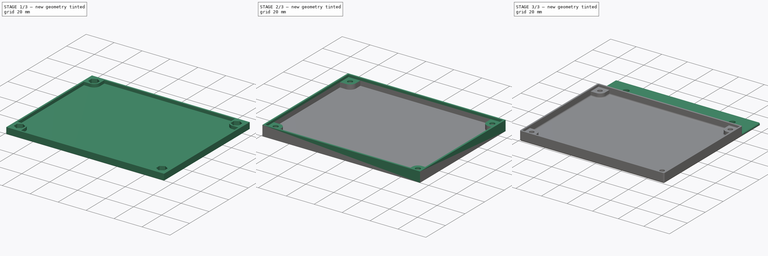
[diagram: build sequence overview — one tinted view per stage of 3, left to right]
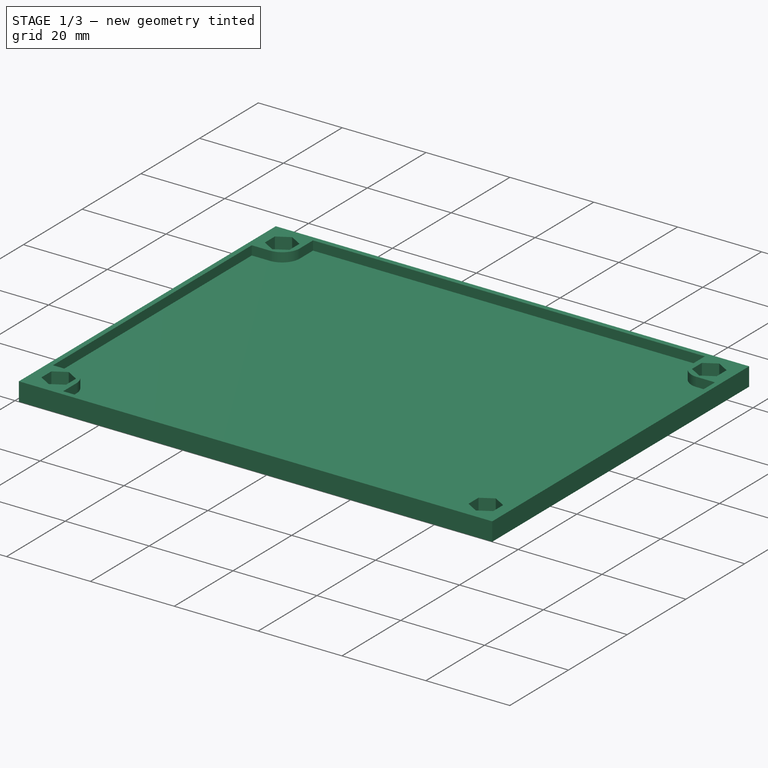
[diagram: stage 1 of 3 — iso view after this stage's code; geometry added in this stage tinted green]
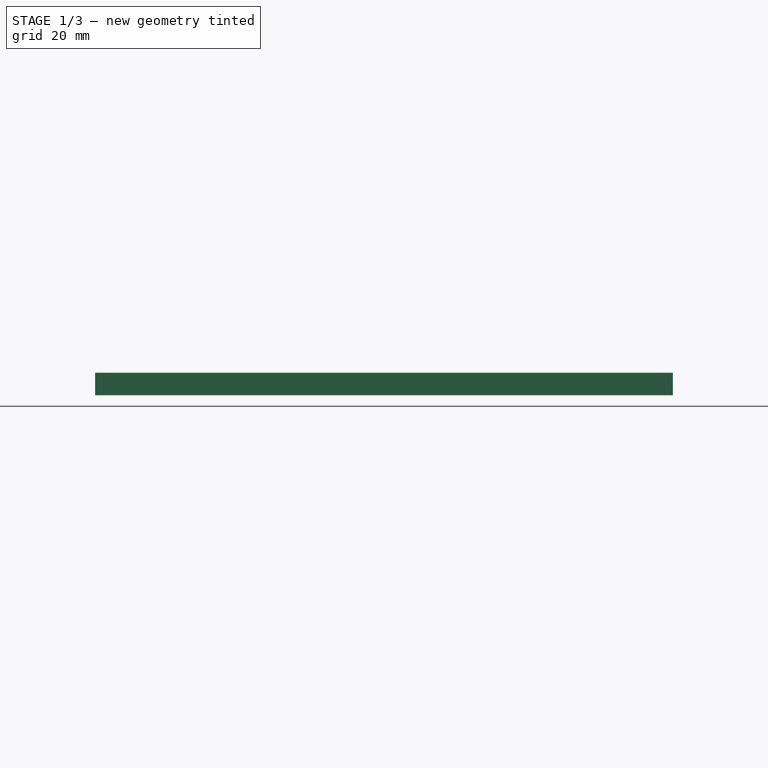
[diagram: stage 1 of 3 — front view after this stage's code; geometry added in this stage tinted green]
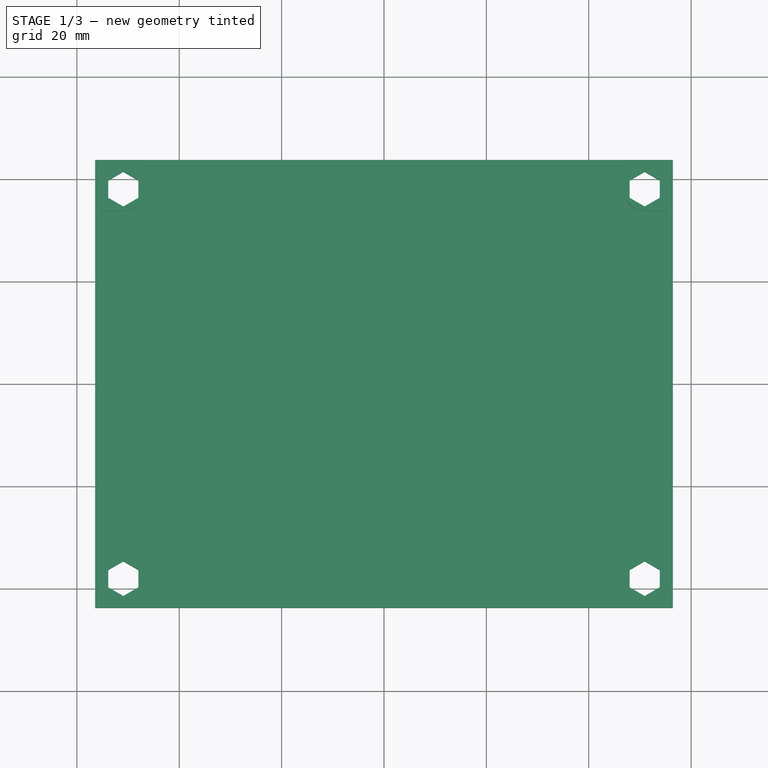
[diagram: stage 1 of 3 — top view after this stage's code; geometry added in this stage tinted green]
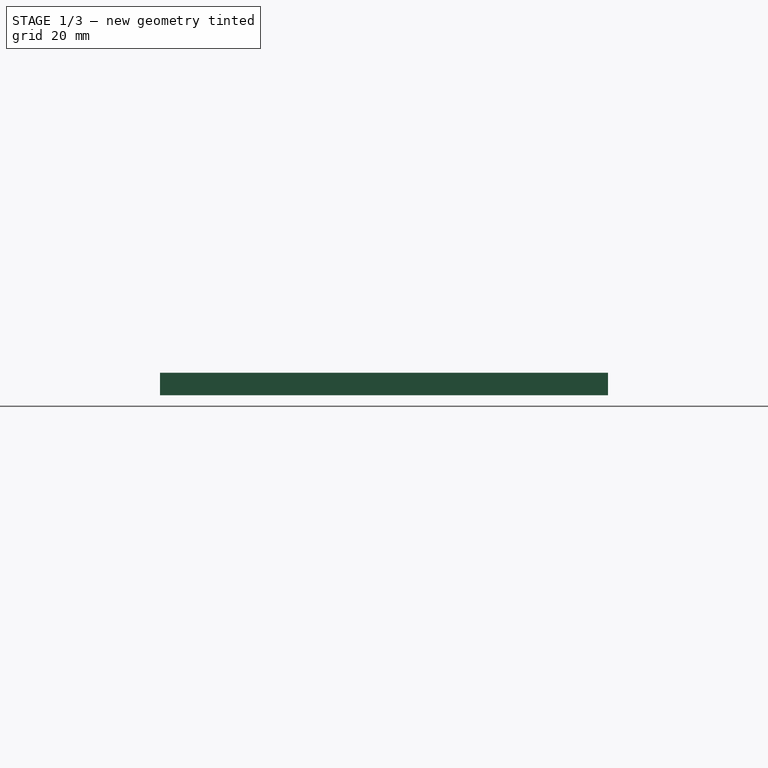
[diagram: stage 1 of 3 — right view after this stage's code; geometry added in this stage tinted green]
FCSTD DOCUMENT  (FreeCAD 0.18R)
Label: SKRCaseV3
License: All rights reserved
LicenseURL: http://en.wikipedia.org/wiki/All_rights_reserved
objects: Sketcher::SketchObject×7, PartDesign::Pad×5, Spreadsheet::Sheet×2, PartDesign::Body×2, PartDesign::Fillet×1, App::Part×1
note: 20 computed .brp shape members not serialized (recipe doc carries the construction recipe); baked Part::Feature solids carry a one-line shape summary decoded from their .brp

FEATURE [Spreadsheet::Sheet] Spreadsheet
FEATURE [Spreadsheet::Sheet] Spreadsheet001  label="Screws"
  cells = B4=M25Radius; C4(M25Radius)==1.45mm; B5=M25HeadRadius; C5(M25HeadRadius)==2.4mm; B6=MHeadHeight; C6(MHeadHeight)==3mm; B7=M25NutRadius; C7(M25NutRadius)==3.1mm; B8=M25NutHeight; C8(M25NutHeight)==2.2mm; B9=M3Radius; C9(M3Radius)==1.75mm; B10=M3HeadRadius; C10(M3HeadRadius)==3mm; B11=M3HeadHeight; C11(M3HeadHeight)==3.4mm; B12=M3NutRadius; C12(M3NutRadius)==3.4mm; B13=M3NutHeight; C13(M3NutHeight)==2.6mm; B14=M3NutDuctWidth; C14(M3NutDuctWidth)==6mm; B15=M4Radius; C15(M4Radius)==2.2mm; B16=M4HeadRadius; C16(M4HeadRadius)==3.7mm; B17=M4HeadHeight; C17(M4HeadHeight)==4mm; B18=M4NutRadius; C18(M4NutRadius)==4.2mm; B19=M4NutHeight; C19(M4NutHeight)==3.3mm; B20=M5Radius; C20(M5Radius)==2.66mm; B21=M5HeadRadius; C21(M5HeadRadius)==4.5mm; B22=M5HeadHeight; C22(M5HeadHeight)==5mm; B23=M5NutRadius; C23(M5NutRadius)==4.75mm; B24=M5NutHeight; C24(M5NutHeight)==4mm
FEATURE [Sketcher::SketchObject] Sketch004  label="Base__"
  MapMode = 5
  expr: Constraints[64] = Screws.M3HeadRadius + 1.2mm
  expr: Constraints[47] = Screws.M3Radius
  sketch-geometry (52):
    g0: LineSegment [constr] StartX=-54.835 StartY=42.15 StartZ=0 EndX=54.835 EndY=42.15 EndZ=0
    g1: LineSegment [constr] StartX=54.835 StartY=42.15 StartZ=0 EndX=54.835 EndY=-42.15 EndZ=0
    g2: LineSegment [constr] StartX=54.835 StartY=-42.15 StartZ=0 EndX=-54.835 EndY=-42.15 EndZ=0
    g3: LineSegment [constr] StartX=-54.835 StartY=-42.15 StartZ=0 EndX=-54.835 EndY=42.15 EndZ=0
    g4: LineSegment [constr] StartX=55.235 StartY=33.85 StartZ=0 EndX=55.235 EndY=-33.85 EndZ=0
    g5: LineSegment [constr] StartX=-55.235 StartY=-33.85 StartZ=0 EndX=-55.235 EndY=33.85 EndZ=0
    g6: LineSegment [constr] StartX=54.835 StartY=-42.15 StartZ=0 EndX=55.235 EndY=-42.15 EndZ=0
    g7: LineSegment [constr] StartX=54.835 StartY=-42.15 StartZ=0 EndX=54.835 EndY=-42.55 EndZ=0
    g8: LineSegment [constr] StartX=-54.835 StartY=42.15 StartZ=0 EndX=-54.835 EndY=42.55 EndZ=0
    g9: LineSegment [constr] StartX=-54.835 StartY=42.15 StartZ=0 EndX=-55.235 EndY=42.15 EndZ=0
    g10: LineSegment [constr] StartX=-56.435 StartY=43.75 StartZ=0 EndX=56.435 EndY=43.75 EndZ=0
    g11: LineSegment [constr] StartX=56.435 StartY=43.75 StartZ=0 EndX=56.435 EndY=-43.75 EndZ=0
    g12: LineSegment [constr] StartX=56.435 StartY=-43.75 StartZ=0 EndX=-56.435 EndY=-43.75 EndZ=0
    g13: LineSegment [constr] StartX=-56.435 StartY=-43.75 StartZ=0 EndX=-56.435 EndY=43.75 EndZ=0
    g14: LineSegment [constr] StartX=55.235 StartY=-42.55 StartZ=0 EndX=56.435 EndY=-42.55 EndZ=0
    g15: LineSegment [constr] StartX=55.235 StartY=-42.55 StartZ=0 EndX=55.235 EndY=-43.75 EndZ=0
    g16: LineSegment [constr] StartX=-55.235 StartY=42.55 StartZ=0 EndX=-55.235 EndY=43.75 EndZ=0
    g17: LineSegment [constr] StartX=-55.235 StartY=42.55 StartZ=0 EndX=-56.435 EndY=42.55 EndZ=0
    g18: Circle [constr] CenterX=-50.925 CenterY=38.05 CenterZ=0 NormalX=0 NormalY=0 NormalZ=1 AngleXU=0 Radius=1.75
    g19: Circle [constr] CenterX=50.925 CenterY=38.05 CenterZ=0 NormalX=0 NormalY=0 NormalZ=1 AngleXU=0 Radius=1.75
    g20: Circle [constr] CenterX=50.925 CenterY=-38.05 CenterZ=0 NormalX=0 NormalY=0 NormalZ=1 AngleXU=0 Radius=1.75
    g21: Circle [constr] CenterX=-50.925 CenterY=-38.05 CenterZ=0 NormalX=0 NormalY=0 NormalZ=1 AngleXU=0 Radius=1.75
    g22: LineSegment [constr] StartX=-55.235 StartY=33.85 StartZ=0 EndX=-50.925 EndY=33.85 EndZ=0
    g23: LineSegment [constr] StartX=-46.725 StartY=42.55 StartZ=0 EndX=-46.725 EndY=38.05 EndZ=0
    g24: ArcOfCircle [constr] CenterX=-50.925 CenterY=38.05 CenterZ=0 NormalX=0 NormalY=0 NormalZ=1 AngleXU=0 Radius=4.2 StartAngle=4.71239 EndAngle=6.28319
    g25: LineSegment [constr] StartX=-50.925 StartY=38.05 StartZ=0 EndX=-46.725 EndY=38.05 EndZ=0
    g26: LineSegment [constr] StartX=-50.925 StartY=38.05 StartZ=0 EndX=-50.925 EndY=33.85 EndZ=0
    g27: LineSegment [constr] StartX=-46.725 StartY=42.55 StartZ=0 EndX=46.725 EndY=42.55 EndZ=0
    g28: LineSegment [constr] StartX=-55.235 StartY=33.85 StartZ=0 EndX=-55.235 EndY=42.55 EndZ=0
    g29: LineSegment [constr] StartX=-55.235 StartY=42.55 StartZ=0 EndX=-46.725 EndY=42.55 EndZ=0
    g30: ArcOfCircle [constr] CenterX=50.925 CenterY=38.05 CenterZ=0 NormalX=0 NormalY=0 NormalZ=1 AngleXU=0 Radius=4.2 StartAngle=3.14159 EndAngle=4.71239
    g31: LineSegment [constr] StartX=46.725 StartY=38.05 StartZ=0 EndX=50.925 EndY=38.05 EndZ=0
    g32: LineSegment [constr] StartX=50.925 StartY=33.85 StartZ=0 EndX=50.925 EndY=38.05 EndZ=0
    g33: LineSegment [constr] StartX=46.725 StartY=38.05 StartZ=0 EndX=46.725 EndY=42.55 EndZ=0
    g34: LineSegment [constr] StartX=50.925 StartY=33.85 StartZ=0 EndX=55.235 EndY=33.85 EndZ=0
    g35: ArcOfCircle [constr] CenterX=50.925 CenterY=-38.05 CenterZ=0 NormalX=0 NormalY=0 NormalZ=1 AngleXU=0 Radius=4.2 StartAngle=1.5708 EndAngle=3.14159
    g36: LineSegment [constr] StartX=50.925 StartY=-33.85 StartZ=0 EndX=55.235 EndY=-33.85 EndZ=0
    g37: LineSegment [constr] StartX=46.725 StartY=-38.05 StartZ=0 EndX=46.725 EndY=-42.55 EndZ=0
    g38: LineSegment [constr] StartX=46.725 StartY=-42.55 StartZ=0 EndX=-46.725 EndY=-42.55 EndZ=0
    g39: LineSegment [constr] StartX=46.725 StartY=-42.55 StartZ=0 EndX=55.235 EndY=-42.55 EndZ=0
    g40: LineSegment [constr] StartX=55.235 StartY=-42.55 StartZ=0 EndX=55.235 EndY=-33.85 EndZ=0
    g41: LineSegment [constr] StartX=50.925 StartY=-38.05 StartZ=0 EndX=50.925 EndY=-33.85 EndZ=0
    g42: LineSegment [constr] StartX=50.925 StartY=-38.05 StartZ=0 EndX=46.725 EndY=-38.05 EndZ=0
    g43: ArcOfCircle [constr] CenterX=-50.925 CenterY=-38.05 CenterZ=0 NormalX=0 NormalY=0 NormalZ=1 AngleXU=0 Radius=4.2 StartAngle=0 EndAngle=1.5708
    g44: LineSegment [constr] StartX=-50.925 StartY=-33.85 StartZ=0 EndX=-55.235 EndY=-33.85 EndZ=0
    g45: LineSegment [constr] StartX=-46.725 StartY=-38.05 StartZ=0 EndX=-46.725 EndY=-42.55 EndZ=0
    g46: LineSegment [constr] StartX=-50.925 StartY=-38.05 StartZ=0 EndX=-50.925 EndY=-33.85 EndZ=0
    g47: LineSegment [constr] StartX=-50.925 StartY=-38.05 StartZ=0 EndX=-46.725 EndY=-38.05 EndZ=0
    g48: LineSegment [constr] StartX=46.725 StartY=42.55 StartZ=0 EndX=55.235 EndY=42.55 EndZ=0
    g49: LineSegment [constr] StartX=55.235 StartY=42.55 StartZ=0 EndX=55.235 EndY=33.85 EndZ=0
    g50: LineSegment [constr] StartX=-55.235 StartY=-33.85 StartZ=0 EndX=-55.235 EndY=-42.55 EndZ=0
    g51: LineSegment [constr] StartX=-55.235 StartY=-42.55 StartZ=0 EndX=-46.725 EndY=-42.55 EndZ=0
  constraints (140):
    c: Coincident(g0,g1)
    c: Coincident(g1,g2)
    c: Coincident(g2,g3)
    c: Coincident(g3,g0)
    c: Horizontal(g0)
    c: Horizontal(g2)
    c: Vertical(g1)
    c: Vertical(g3)
    c: Symmetric(g0,g1,g-1)
    c: DistanceX(g0,g0) = 109.67  'PCBWidth'
    c: DistanceY(g3,g3) = 84.3  'PCBLength'
    c: Vertical(g4)
    c: Vertical(g5)
    c: Coincident(g6,g1)
    c: Horizontal(g6)
    c: Coincident(g7,g1)
    c: Vertical(g7)
    c: Coincident(g8,g0)
    c: Vertical(g8)
    c: Coincident(g9,g0)
    c: Horizontal(g9)
    c: Equal(g6,g7)
    c: Equal(g7,g8)
    c: Equal(g8,g9)
    c: Coincident(g10,g11)
    c: Coincident(g11,g12)
    c: Coincident(g12,g13)
    c: Coincident(g13,g10)
    c: Horizontal(g10)
    c: Horizontal(g12)
    c: Vertical(g11)
    c: Vertical(g13)
    c: PointOnObject(g14,g11)
    c: Horizontal(g14)
    c: PointOnObject(g15,g12)
    c: Vertical(g15)
    c: PointOnObject(g16,g10)
    c: Vertical(g16)
    c: PointOnObject(g17,g13)
    c: Horizontal(g17)
    c: Equal(g14,g15)
    c: Equal(g15,g16)
    c: Equal(g16,g17)
    c: DistanceY(g15,g15) = 1.2  'WallThickness'
    c: Equal(g18,g19)
    c: Equal(g19,g20)
    c: Equal(g20,g21)
    c: Radius(g18) = 1.75
    c: Symmetric(g21,g18,g-1)
    c: Symmetric(g18,g19,g-2)
    c: Symmetric(g21,g20,g-2)
    c: DistanceX(g18,g19) = 101.85  'HoleDX'
    c: DistanceY(g21,g18) = 76.1  'HoleDY'
    c: Horizontal(g22)
    c: Vertical(g23)
    c: Coincident(g24,g18)
    c: Coincident(g24,g22)
    c: Coincident(g24,g23)
    c: Coincident(g25,g24)
    c: Coincident(g25,g23)
    c: Horizontal(g25)
    c: Coincident(g26,g24)
    c: Coincident(g26,g22)
    c: Vertical(g26)
    c: Radius(g24) = 4.2
    c: Coincident(g5,g22)
    c: Coincident(g27,g23)
    c: Coincident(g28,g5)
    c: Coincident(g28,g16)
    c: Vertical(g28)
    c: Coincident(g29,g16)
    c: Coincident(g29,g23)
    c: Horizontal(g29)
    c: PointOnObject(g8,g29)
    c: PointOnObject(g9,g28)
    c: Coincident(g16,g17)
    c: Horizontal(g27)
    c: Coincident(g30,g19)
    c: Equal(g30,g24)
    c: Coincident(g31,g30)
    c: Coincident(g31,g30)
    c: Horizontal(g31)
    c: Coincident(g32,g30)
    c: Coincident(g32,g30)
    c: Vertical(g32)
    c: Coincident(g33,g30)
    c: Vertical(g33)
    c: Coincident(g34,g30)
    c: Horizontal(g34)
    c: Coincident(g27,g33)
    c: Coincident(g4,g34)
    c: Coincident(g35,g20)
    c: Coincident(g36,g35)
    c: Horizontal(g36)
    c: Coincident(g37,g35)
    c: Vertical(g37)
    c: Equal(g30,g35)
    c: Coincident(g4,g36)
    c: Coincident(g39,g37)
    c: Coincident(g39,g14)
    c: Horizontal(g39)
    c: PointOnObject(g7,g39)
    c: Coincident(g14,g15)
    c: Coincident(g40,g14)
    c: Coincident(g40,g4)
    c: Vertical(g40)
    c: PointOnObject(g6,g40)
    c: Horizontal(g38)
    c: Coincident(g41,g35)
    c: Coincident(g41,g35)
    c: Vertical(g41)
    c: Coincident(g42,g35)
    c: Coincident(g42,g35)
    c: Horizontal(g42)
    c: Coincident(g37,g38)
    c: DistanceY(g14,g6) = 0.4  'Tolerance'
    c: Coincident(g43,g21)
    c: Coincident(g44,g43)
    c: Horizontal(g44)
    c: Coincident(g45,g43)
    c: Vertical(g45)
    c: Equal(g43,g35)
    c: Coincident(g46,g43)
    c: Coincident(g46,g43)
    c: Vertical(g46)
    c: Coincident(g47,g43)
    c: Coincident(g47,g43)
    c: Horizontal(g47)
    c: Coincident(g5,g44)
    c: Coincident(g38,g45)
    c: Coincident(g48,g27)
    c: Horizontal(g48)
    c: Coincident(g49,g48)
    c: Coincident(g49,g4)
    c: Vertical(g49)
    c: Coincident(g5,g50)
    c: Vertical(g50)
    c: Coincident(g50,g51)
    c: Coincident(g51,g38)
    c: Horizontal(g51)
FEATURE [Sketcher::SketchObject] Sketch005  label="Base"
  MapMode = 5
  expr: Constraints[43] = Base__.Constraints.WallThickness
  expr: Constraints[115] = Base__.Constraints.Tolerance
  expr: Constraints[158] = Screws.M3NutRadius
  expr: Constraints[52] = Base__.Constraints.HoleDY
  expr: Constraints[51] = Base__.Constraints.HoleDX
  expr: Constraints[9] = Base__.Constraints.PCBWidth
  expr: Constraints[10] = Base__.Constraints.PCBLength
  expr: Constraints[64] = Screws.M3HeadRadius + 1.2mm
  expr: Constraints[47] = Screws.M3Radius
  sketch-geometry (80):
    g0: LineSegment [constr] StartX=-54.835 StartY=42.15 StartZ=0 EndX=54.835 EndY=42.15 EndZ=0
    g1: LineSegment [constr] StartX=54.835 StartY=42.15 StartZ=0 EndX=54.835 EndY=-42.15 EndZ=0
    g2: LineSegment [constr] StartX=54.835 StartY=-42.15 StartZ=0 EndX=-54.835 EndY=-42.15 EndZ=0
    g3: LineSegment [constr] StartX=-54.835 StartY=-42.15 StartZ=0 EndX=-54.835 EndY=42.15 EndZ=0
    g4: LineSegment [constr] StartX=55.235 StartY=33.85 StartZ=0 EndX=55.235 EndY=-33.85 EndZ=0
    g5: LineSegment [constr] StartX=-55.235 StartY=-33.85 StartZ=0 EndX=-55.235 EndY=33.85 EndZ=0
    g6: LineSegment [constr] StartX=54.835 StartY=-42.15 StartZ=0 EndX=55.235 EndY=-42.15 EndZ=0
    g7: LineSegment [constr] StartX=54.835 StartY=-42.15 StartZ=0 EndX=54.835 EndY=-42.55 EndZ=0
    g8: LineSegment [constr] StartX=-54.835 StartY=42.15 StartZ=0 EndX=-54.835 EndY=42.55 EndZ=0
    g9: LineSegment [constr] StartX=-54.835 StartY=42.15 StartZ=0 EndX=-55.235 EndY=42.15 EndZ=0
    g10: LineSegment StartX=-56.435 StartY=43.75 StartZ=0 EndX=56.435 EndY=43.75 EndZ=0
    g11: LineSegment StartX=56.435 StartY=43.75 StartZ=0 EndX=56.435 EndY=-43.75 EndZ=0
    g12: LineSegment StartX=56.435 StartY=-43.75 StartZ=0 EndX=-56.435 EndY=-43.75 EndZ=0
    g13: LineSegment StartX=-56.435 StartY=-43.75 StartZ=0 EndX=-56.435 EndY=43.75 EndZ=0
    g14: LineSegment [constr] StartX=55.235 StartY=-42.55 StartZ=0 EndX=56.435 EndY=-42.55 EndZ=0
    g15: LineSegment [constr] StartX=55.235 StartY=-42.55 StartZ=0 EndX=55.235 EndY=-43.75 EndZ=0
    g16: LineSegment [constr] StartX=-55.235 StartY=42.55 StartZ=0 EndX=-55.235 EndY=43.75 EndZ=0
    g17: LineSegment [constr] StartX=-55.235 StartY=42.55 StartZ=0 EndX=-56.435 EndY=42.55 EndZ=0
    g18: Circle [constr] CenterX=-50.925 CenterY=38.05 CenterZ=0 NormalX=0 NormalY=0 NormalZ=1 AngleXU=0 Radius=1.75
    g19: Circle [constr] CenterX=50.925 CenterY=38.05 CenterZ=0 NormalX=0 NormalY=0 NormalZ=1 AngleXU=0 Radius=1.75
    g20: Circle [constr] CenterX=50.925 CenterY=-38.05 CenterZ=0 NormalX=0 NormalY=0 NormalZ=1 AngleXU=0 Radius=1.75
    g21: Circle [constr] CenterX=-50.925 CenterY=-38.05 CenterZ=0 NormalX=0 NormalY=0 NormalZ=1 AngleXU=0 Radius=1.75
    g22: LineSegment [constr] StartX=-55.235 StartY=33.85 StartZ=0 EndX=-50.925 EndY=33.85 EndZ=0
    g23: LineSegment [constr] StartX=-46.725 StartY=42.55 StartZ=0 EndX=-46.725 EndY=38.05 EndZ=0
    g24: ArcOfCircle [constr] CenterX=-50.925 CenterY=38.05 CenterZ=0 NormalX=0 NormalY=0 NormalZ=1 AngleXU=0 Radius=4.2 StartAngle=4.71239 EndAngle=6.28319
    g25: LineSegment [constr] StartX=-50.925 StartY=38.05 StartZ=0 EndX=-46.725 EndY=38.05 EndZ=0
    g26: LineSegment [constr] StartX=-50.925 StartY=38.05 StartZ=0 EndX=-50.925 EndY=33.85 EndZ=0
    g27: LineSegment [constr] StartX=-46.725 StartY=42.55 StartZ=0 EndX=46.725 EndY=42.55 EndZ=0
    g28: LineSegment [constr] StartX=-55.235 StartY=33.85 StartZ=0 EndX=-55.235 EndY=42.55 EndZ=0
    g29: LineSegment [constr] StartX=-55.235 StartY=42.55 StartZ=0 EndX=-46.725 EndY=42.55 EndZ=0
    g30: ArcOfCircle [constr] CenterX=50.925 CenterY=38.05 CenterZ=0 NormalX=0 NormalY=0 NormalZ=1 AngleXU=0 Radius=4.2 StartAngle=3.14159 EndAngle=4.71239
    g31: LineSegment [constr] StartX=46.725 StartY=38.05 StartZ=0 EndX=50.925 EndY=38.05 EndZ=0
    g32: LineSegment [constr] StartX=50.925 StartY=33.85 StartZ=0 EndX=50.925 EndY=38.05 EndZ=0
    g33: LineSegment [constr] StartX=46.725 StartY=38.05 StartZ=0 EndX=46.725 EndY=42.55 EndZ=0
    g34: LineSegment [constr] StartX=50.925 StartY=33.85 StartZ=0 EndX=55.235 EndY=33.85 EndZ=0
    g35: ArcOfCircle [constr] CenterX=50.925 CenterY=-38.05 CenterZ=0 NormalX=0 NormalY=0 NormalZ=1 AngleXU=0 Radius=4.2 StartAngle=1.5708 EndAngle=3.14159
    g36: LineSegment [constr] StartX=50.925 StartY=-33.85 StartZ=0 EndX=55.235 EndY=-33.85 EndZ=0
    g37: LineSegment [constr] StartX=46.725 StartY=-38.05 StartZ=0 EndX=46.725 EndY=-42.55 EndZ=0
    g38: LineSegment [constr] StartX=46.725 StartY=-42.55 StartZ=0 EndX=-46.725 EndY=-42.55 EndZ=0
    g39: LineSegment [constr] StartX=46.725 StartY=-42.55 StartZ=0 EndX=55.235 EndY=-42.55 EndZ=0
    g40: LineSegment [constr] StartX=55.235 StartY=-42.55 StartZ=0 EndX=55.235 EndY=-33.85 EndZ=0
    g41: LineSegment [constr] StartX=50.925 StartY=-38.05 StartZ=0 EndX=50.925 EndY=-33.85 EndZ=0
    g42: LineSegment [constr] StartX=50.925 StartY=-38.05 StartZ=0 EndX=46.725 EndY=-38.05 EndZ=0
    g43: ArcOfCircle [constr] CenterX=-50.925 CenterY=-38.05 CenterZ=0 NormalX=0 NormalY=0 NormalZ=1 AngleXU=0 Radius=4.2 StartAngle=0 EndAngle=1.5708
    g44: LineSegment [constr] StartX=-50.925 StartY=-33.85 StartZ=0 EndX=-55.235 EndY=-33.85 EndZ=0
    g45: LineSegment [constr] StartX=-46.725 StartY=-38.05 StartZ=0 EndX=-46.725 EndY=-42.55 EndZ=0
    g46: LineSegment [constr] StartX=-50.925 StartY=-38.05 StartZ=0 EndX=-50.925 EndY=-33.85 EndZ=0
    g47: LineSegment [constr] StartX=-50.925 StartY=-38.05 StartZ=0 EndX=-46.725 EndY=-38.05 EndZ=0
    g48: LineSegment [constr] StartX=46.725 StartY=42.55 StartZ=0 EndX=55.235 EndY=42.55 EndZ=0
    g49: LineSegment [constr] StartX=55.235 StartY=42.55 StartZ=0 EndX=55.235 EndY=33.85 EndZ=0
    g50: LineSegment [constr] StartX=-55.235 StartY=-33.85 StartZ=0 EndX=-55.235 EndY=-42.55 EndZ=0
    g51: LineSegment [constr] StartX=-55.235 StartY=-42.55 StartZ=0 EndX=-46.725 EndY=-42.55 EndZ=0
    g52: LineSegment StartX=-47.9805 StartY=36.35 StartZ=0 EndX=-47.9805 EndY=39.75 EndZ=0
    g53: LineSegment StartX=-47.9805 StartY=39.75 StartZ=0 EndX=-50.925 EndY=41.45 EndZ=0
    g54: LineSegment StartX=-50.925 StartY=41.45 StartZ=0 EndX=-53.8695 EndY=39.75 EndZ=0
    g55: LineSegment StartX=-53.8695 StartY=39.75 StartZ=0 EndX=-53.8695 EndY=36.35 EndZ=0
    g56: LineSegment StartX=-53.8695 StartY=36.35 StartZ=0 EndX=-50.925 EndY=34.65 EndZ=0
    g57: LineSegment StartX=-50.925 StartY=34.65 StartZ=0 EndX=-47.9805 EndY=36.35 EndZ=0
    g58: Circle [constr] CenterX=-50.925 CenterY=38.05 CenterZ=0 NormalX=0 NormalY=0 NormalZ=1 AngleXU=0 Radius=3.4
    g59: LineSegment StartX=53.8695 StartY=36.35 StartZ=0 EndX=53.8695 EndY=39.75 EndZ=0
    g60: LineSegment StartX=53.8695 StartY=39.75 StartZ=0 EndX=50.925 EndY=41.45 EndZ=0
    g61: LineSegment StartX=50.925 StartY=41.45 StartZ=0 EndX=47.9805 EndY=39.75 EndZ=0
    g62: LineSegment StartX=47.9805 StartY=39.75 StartZ=0 EndX=47.9805 EndY=36.35 EndZ=0
    g63: LineSegment StartX=47.9805 StartY=36.35 StartZ=0 EndX=50.925 EndY=34.65 EndZ=0
    g64: LineSegment StartX=50.925 StartY=34.65 StartZ=0 EndX=53.8695 EndY=36.35 EndZ=0
    g65: Circle [constr] CenterX=50.925 CenterY=38.05 CenterZ=0 NormalX=0 NormalY=0 NormalZ=1 AngleXU=0 Radius=3.4
    g66: LineSegment StartX=53.8695 StartY=-36.35 StartZ=0 EndX=50.925 EndY=-34.65 EndZ=0
    g67: LineSegment StartX=50.925 StartY=-34.65 StartZ=0 EndX=47.9805 EndY=-36.35 EndZ=0
    g68: LineSegment StartX=47.9805 StartY=-36.35 StartZ=0 EndX=47.9805 EndY=-39.75 EndZ=0
    g69: LineSegment StartX=47.9805 StartY=-39.75 StartZ=0 EndX=50.925 EndY=-41.45 EndZ=0
    g70: LineSegment StartX=50.925 StartY=-41.45 StartZ=0 EndX=53.8695 EndY=-39.75 EndZ=0
    g71: LineSegment StartX=53.8695 StartY=-39.75 StartZ=0 EndX=53.8695 EndY=-36.35 EndZ=0
    g72: Circle [constr] CenterX=50.925 CenterY=-38.05 CenterZ=0 NormalX=0 NormalY=0 NormalZ=1 AngleXU=0 Radius=3.4
    g73: LineSegment StartX=-47.9805 StartY=-39.75 StartZ=0 EndX=-47.9805 EndY=-36.35 EndZ=0
    g74: LineSegment StartX=-47.9805 StartY=-36.35 StartZ=0 EndX=-50.925 EndY=-34.65 EndZ=0
    g75: LineSegment StartX=-50.925 StartY=-34.65 StartZ=0 EndX=-53.8695 EndY=-36.35 EndZ=0
    g76: LineSegment StartX=-53.8695 StartY=-36.35 StartZ=0 EndX=-53.8695 EndY=-39.75 EndZ=0
    g77: LineSegment StartX=-53.8695 StartY=-39.75 StartZ=0 EndX=-50.925 EndY=-41.45 EndZ=0
    g78: LineSegment StartX=-50.925 StartY=-41.45 StartZ=0 EndX=-47.9805 EndY=-39.75 EndZ=0
    g79: Circle [constr] CenterX=-50.925 CenterY=-38.05 CenterZ=0 NormalX=0 NormalY=0 NormalZ=1 AngleXU=0 Radius=3.4
  constraints (204):
    c: Coincident(g0,g1)
    c: Coincident(g1,g2)
    c: Coincident(g2,g3)
    c: Coincident(g3,g0)
    c: Horizontal(g0)
    c: Horizontal(g2)
    c: Vertical(g1)
    c: Vertical(g3)
    c: Symmetric(g0,g1,g-1)
    c: DistanceX(g0,g0) = 109.67
    c: DistanceY(g3,g3) = 84.3
    c: Vertical(g4)
    c: Vertical(g5)
    c: Coincident(g6,g1)
    c: Horizontal(g6)
    c: Coincident(g7,g1)
    c: Vertical(g7)
    c: Coincident(g8,g0)
    c: Vertical(g8)
    c: Coincident(g9,g0)
    c: Horizontal(g9)
    c: Equal(g6,g7)
    c: Equal(g7,g8)
    c: Equal(g8,g9)
    c: Coincident(g10,g11)
    c: Coincident(g11,g12)
    c: Coincident(g12,g13)
    c: Coincident(g13,g10)
    c: Horizontal(g10)
    c: Horizontal(g12)
    c: Vertical(g11)
    c: Vertical(g13)
    c: PointOnObject(g14,g11)
    c: Horizontal(g14)
    c: PointOnObject(g15,g12)
    c: Vertical(g15)
    c: PointOnObject(g16,g10)
    c: Vertical(g16)
    c: PointOnObject(g17,g13)
    c: Horizontal(g17)
    c: Equal(g14,g15)
    c: Equal(g15,g16)
    c: Equal(g16,g17)
    c: DistanceY(g15,g15) = 1.2
    c: Equal(g18,g19)
    c: Equal(g19,g20)
    c: Equal(g20,g21)
    c: Radius(g18) = 1.75
    c: Symmetric(g21,g18,g-1)
    c: Symmetric(g18,g19,g-2)
    c: Symmetric(g21,g20,g-2)
    c: DistanceX(g18,g19) = 101.85
    c: DistanceY(g21,g18) = 76.1
    c: Horizontal(g22)
    c: Vertical(g23)
    c: Coincident(g24,g18)
    c: Coincident(g24,g22)
    c: Coincident(g24,g23)
    c: Coincident(g25,g24)
    c: Coincident(g25,g23)
    c: Horizontal(g25)
    c: Coincident(g26,g24)
    c: Coincident(g26,g22)
    c: Vertical(g26)
    c: Radius(g24) = 4.2
    c: Coincident(g5,g22)
    c: Coincident(g27,g23)
    c: Coincident(g28,g5)
    c: Coincident(g28,g16)
    c: Vertical(g28)
    c: Coincident(g29,g16)
    c: Coincident(g29,g23)
    c: Horizontal(g29)
    c: PointOnObject(g8,g29)
    c: PointOnObject(g9,g28)
    c: Coincident(g16,g17)
    c: Horizontal(g27)
    c: Coincident(g30,g19)
    c: Equal(g30,g24)
    c: Coincident(g31,g30)
    c: Coincident(g31,g30)
    c: Horizontal(g31)
    c: Coincident(g32,g30)
    c: Coincident(g32,g30)
    c: Vertical(g32)
    c: Coincident(g33,g30)
    c: Vertical(g33)
    c: Coincident(g34,g30)
    c: Horizontal(g34)
    c: Coincident(g27,g33)
    c: Coincident(g4,g34)
    c: Coincident(g35,g20)
    c: Coincident(g36,g35)
    c: Horizontal(g36)
    c: Coincident(g37,g35)
    c: Vertical(g37)
    c: Equal(g30,g35)
    c: Coincident(g4,g36)
    c: Coincident(g39,g37)
    c: Coincident(g39,g14)
    c: Horizontal(g39)
    c: PointOnObject(g7,g39)
    c: Coincident(g14,g15)
    c: Coincident(g40,g14)
    c: Coincident(g40,g4)
    c: Vertical(g40)
    c: PointOnObject(g6,g40)
    c: Horizontal(g38)
    c: Coincident(g41,g35)
    c: Coincident(g41,g35)
    c: Vertical(g41)
    c: Coincident(g42,g35)
    c: Coincident(g42,g35)
    c: Horizontal(g42)
    c: Coincident(g37,g38)
    c: DistanceY(g14,g6) = 0.4
    c: Coincident(g43,g21)
    c: Coincident(g44,g43)
    c: Horizontal(g44)
    c: Coincident(g45,g43)
    c: Vertical(g45)
    c: Equal(g43,g35)
    c: Coincident(g46,g43)
    c: Coincident(g46,g43)
    c: Vertical(g46)
    c: Coincident(g47,g43)
    c: Coincident(g47,g43)
    c: Horizontal(g47)
    c: Coincident(g5,g44)
    c: Coincident(g38,g45)
    c: Coincident(g48,g27)
    c: Horizontal(g48)
    c: Coincident(g49,g48)
    c: Coincident(g49,g4)
    c: Vertical(g49)
    c: Coincident(g5,g50)
    c: Vertical(g50)
    c: Coincident(g50,g51)
    c: Coincident(g51,g38)
    c: Horizontal(g51)
    c: Coincident(g52,g53)
    c: Coincident(g53,g54)
    c: Coincident(g54,g55)
    c: Coincident(g55,g56)
    c: Coincident(g56,g57)
    c: Coincident(g57,g52)
    c: Equal(g52, g53-g57) x5
    c: PointOnObject(g52,g58)
    c: PointOnObject(g53,g58)
    c: PointOnObject(g54,g58)
    c: PointOnObject(g55,g58)
    c: PointOnObject(g56,g58)
    c: PointOnObject(g57,g58)
    c: Coincident(g58,g18)
    c: Radius(g58) = 3.4
    c: Vertical(g55)
    c: Coincident(g59,g60)
    c: Coincident(g60,g61)
    c: Coincident(g61,g62)
    c: Coincident(g62,g63)
    c: Coincident(g63,g64)
    c: Coincident(g64,g59)
    c: Equal(g59, g60-g64) x5
    c: PointOnObject(g59,g65)
    c: PointOnObject(g60,g65)
    c: PointOnObject(g61,g65)
    c: PointOnObject(g62,g65)
    c: PointOnObject(g63,g65)
    c: PointOnObject(g64,g65)
    c: Coincident(g65,g19)
    c: Equal(g58,g65)
    c: Vertical(g62)
    c: Coincident(g66,g67)
    c: Coincident(g67,g68)
    c: Coincident(g68,g69)
    c: Coincident(g69,g70)
    c: Coincident(g70,g71)
    c: Coincident(g71,g66)
    c: Equal(g66, g67-g71) x5
    c: PointOnObject(g66,g72)
    c: PointOnObject(g67,g72)
    c: PointOnObject(g68,g72)
    c: PointOnObject(g69,g72)
    c: PointOnObject(g70,g72)
    c: PointOnObject(g71,g72)
    c: Coincident(g72,g20)
    c: Equal(g72,g65)
    c: Vertical(g68)
    c: Coincident(g73,g74)
    c: Coincident(g74,g75)
    c: Coincident(g75,g76)
    c: Coincident(g76,g77)
    c: Coincident(g77,g78)
    c: Coincident(g78,g73)
    c: Equal(g73, g74-g78) x5
    c: PointOnObject(g73,g79)
    c: PointOnObject(g74,g79)
    c: PointOnObject(g75,g79)
    c: PointOnObject(g76,g79)
    c: PointOnObject(g77,g79)
    c: PointOnObject(g78,g79)
    c: Coincident(g79,g21)
    c: Equal(g79,g72)
    c: Vertical(g73)
FEATURE [PartDesign::Pad] Pad  label="Base_"
  Length = 2.2
  Length2 = 100
  Profile = -> Sketch005
  Type = 0
FEATURE [Sketcher::SketchObject] Sketch006  label="PCBSpacer"
  MapMode = 5
  Placement = pos=(0,0,2.2) rot=(0,0,1;0rad)
  expr: Constraints[43] = Base__.Constraints.WallThickness
  expr: Constraints[115] = Base__.Constraints.Tolerance
  expr: Constraints[158] = Screws.M3NutRadius
  expr: Placement.Base.z = Base.Placement.Base.z + Base_.Length
  expr: Constraints[52] = Base__.Constraints.HoleDY
  expr: Constraints[51] = Base__.Constraints.HoleDX
  expr: Constraints[9] = Base__.Constraints.PCBWidth
  expr: Constraints[10] = Base__.Constraints.PCBLength
  expr: Constraints[64] = Screws.M3HeadRadius + 1.2mm
  expr: Constraints[47] = Screws.M3Radius
  sketch-geometry (80):
    g0: LineSegment [constr] StartX=-54.835 StartY=42.15 StartZ=0 EndX=54.835 EndY=42.15 EndZ=0
    g1: LineSegment [constr] StartX=54.835 StartY=42.15 StartZ=0 EndX=54.835 EndY=-42.15 EndZ=0
    g2: LineSegment [constr] StartX=54.835 StartY=-42.15 StartZ=0 EndX=-54.835 EndY=-42.15 EndZ=0
    g3: LineSegment [constr] StartX=-54.835 StartY=-42.15 StartZ=0 EndX=-54.835 EndY=42.15 EndZ=0
    g4: LineSegment StartX=55.235 StartY=33.85 StartZ=0 EndX=55.235 EndY=-33.85 EndZ=0
    g5: LineSegment StartX=-55.235 StartY=-33.85 StartZ=0 EndX=-55.235 EndY=33.85 EndZ=0
    g6: LineSegment [constr] StartX=54.835 StartY=-42.15 StartZ=0 EndX=55.235 EndY=-42.15 EndZ=0
    g7: LineSegment [constr] StartX=54.835 StartY=-42.15 StartZ=0 EndX=54.835 EndY=-42.55 EndZ=0
    g8: LineSegment [constr] StartX=-54.835 StartY=42.15 StartZ=0 EndX=-54.835 EndY=42.55 EndZ=0
    g9: LineSegment [constr] StartX=-54.835 StartY=42.15 StartZ=0 EndX=-55.235 EndY=42.15 EndZ=0
    g10: LineSegment StartX=-56.435 StartY=43.75 StartZ=0 EndX=56.435 EndY=43.75 EndZ=0
    g11: LineSegment StartX=56.435 StartY=43.75 StartZ=0 EndX=56.435 EndY=-43.75 EndZ=0
    g12: LineSegment StartX=56.435 StartY=-43.75 StartZ=0 EndX=-56.435 EndY=-43.75 EndZ=0
    g13: LineSegment StartX=-56.435 StartY=-43.75 StartZ=0 EndX=-56.435 EndY=43.75 EndZ=0
    g14: LineSegment [constr] StartX=55.235 StartY=-42.55 StartZ=0 EndX=56.435 EndY=-42.55 EndZ=0
    g15: LineSegment [constr] StartX=55.235 StartY=-42.55 StartZ=0 EndX=55.235 EndY=-43.75 EndZ=0
    g16: LineSegment [constr] StartX=-55.235 StartY=42.55 StartZ=0 EndX=-55.235 EndY=43.75 EndZ=0
    g17: LineSegment [constr] StartX=-55.235 StartY=42.55 StartZ=0 EndX=-56.435 EndY=42.55 EndZ=0
    g18: Circle [constr] CenterX=-50.925 CenterY=38.05 CenterZ=0 NormalX=0 NormalY=0 NormalZ=1 AngleXU=0 Radius=1.75
    g19: Circle [constr] CenterX=50.925 CenterY=38.05 CenterZ=0 NormalX=0 NormalY=0 NormalZ=1 AngleXU=0 Radius=1.75
    g20: Circle [constr] CenterX=50.925 CenterY=-38.05 CenterZ=0 NormalX=0 NormalY=0 NormalZ=1 AngleXU=0 Radius=1.75
    g21: Circle [constr] CenterX=-50.925 CenterY=-38.05 CenterZ=0 NormalX=0 NormalY=0 NormalZ=1 AngleXU=0 Radius=1.75
    g22: LineSegment StartX=-55.235 StartY=33.85 StartZ=0 EndX=-50.925 EndY=33.85 EndZ=0
    g23: LineSegment StartX=-46.725 StartY=42.55 StartZ=0 EndX=-46.725 EndY=38.05 EndZ=0
    g24: ArcOfCircle CenterX=-50.925 CenterY=38.05 CenterZ=0 NormalX=0 NormalY=0 NormalZ=1 AngleXU=0 Radius=4.2 StartAngle=4.71239 EndAngle=6.28319
    g25: LineSegment [constr] StartX=-50.925 StartY=38.05 StartZ=0 EndX=-46.725 EndY=38.05 EndZ=0
    g26: LineSegment [constr] StartX=-50.925 StartY=38.05 StartZ=0 EndX=-50.925 EndY=33.85 EndZ=0
    g27: LineSegment StartX=-46.725 StartY=42.55 StartZ=0 EndX=46.725 EndY=42.55 EndZ=0
    g28: LineSegment [constr] StartX=-55.235 StartY=33.85 StartZ=0 EndX=-55.235 EndY=42.55 EndZ=0
    g29: LineSegment [constr] StartX=-55.235 StartY=42.55 StartZ=0 EndX=-46.725 EndY=42.55 EndZ=0
    g30: ArcOfCircle CenterX=50.925 CenterY=38.05 CenterZ=0 NormalX=0 NormalY=0 NormalZ=1 AngleXU=0 Radius=4.2 StartAngle=3.14159 EndAngle=4.71239
    g31: LineSegment [constr] StartX=46.725 StartY=38.05 StartZ=0 EndX=50.925 EndY=38.05 EndZ=0
    g32: LineSegment [constr] StartX=50.925 StartY=33.85 StartZ=0 EndX=50.925 EndY=38.05 EndZ=0
    g33: LineSegment StartX=46.725 StartY=38.05 StartZ=0 EndX=46.725 EndY=42.55 EndZ=0
    g34: LineSegment StartX=50.925 StartY=33.85 StartZ=0 EndX=55.235 EndY=33.85 EndZ=0
    g35: ArcOfCircle CenterX=50.925 CenterY=-38.05 CenterZ=0 NormalX=0 NormalY=0 NormalZ=1 AngleXU=0 Radius=4.2 StartAngle=1.5708 EndAngle=3.14159
    g36: LineSegment StartX=50.925 StartY=-33.85 StartZ=0 EndX=55.235 EndY=-33.85 EndZ=0
    g37: LineSegment StartX=46.725 StartY=-38.05 StartZ=0 EndX=46.725 EndY=-42.55 EndZ=0
    g38: LineSegment StartX=46.725 StartY=-42.55 StartZ=0 EndX=-46.725 EndY=-42.55 EndZ=0
    g39: LineSegment [constr] StartX=46.725 StartY=-42.55 StartZ=0 EndX=55.235 EndY=-42.55 EndZ=0
    g40: LineSegment [constr] StartX=55.235 StartY=-42.55 StartZ=0 EndX=55.235 EndY=-33.85 EndZ=0
    g41: LineSegment [constr] StartX=50.925 StartY=-38.05 StartZ=0 EndX=50.925 EndY=-33.85 EndZ=0
    g42: LineSegment [constr] StartX=50.925 StartY=-38.05 StartZ=0 EndX=46.725 EndY=-38.05 EndZ=0
    g43: ArcOfCircle CenterX=-50.925 CenterY=-38.05 CenterZ=0 NormalX=0 NormalY=0 NormalZ=1 AngleXU=0 Radius=4.2 StartAngle=0 EndAngle=1.5708
    g44: LineSegment StartX=-50.925 StartY=-33.85 StartZ=0 EndX=-55.235 EndY=-33.85 EndZ=0
    g45: LineSegment StartX=-46.725 StartY=-38.05 StartZ=0 EndX=-46.725 EndY=-42.55 EndZ=0
    g46: LineSegment [constr] StartX=-50.925 StartY=-38.05 StartZ=0 EndX=-50.925 EndY=-33.85 EndZ=0
    g47: LineSegment [constr] StartX=-50.925 StartY=-38.05 StartZ=0 EndX=-46.725 EndY=-38.05 EndZ=0
    g48: LineSegment [constr] StartX=46.725 StartY=42.55 StartZ=0 EndX=55.235 EndY=42.55 EndZ=0
    g49: LineSegment [constr] StartX=55.235 StartY=42.55 StartZ=0 EndX=55.235 EndY=33.85 EndZ=0
    g50: LineSegment [constr] StartX=-55.235 StartY=-33.85 StartZ=0 EndX=-55.235 EndY=-42.55 EndZ=0
    g51: LineSegment [constr] StartX=-55.235 StartY=-42.55 StartZ=0 EndX=-46.725 EndY=-42.55 EndZ=0
    g52: LineSegment StartX=-47.9805 StartY=36.35 StartZ=0 EndX=-47.9805 EndY=39.75 EndZ=0
    g53: LineSegment StartX=-47.9805 StartY=39.75 StartZ=0 EndX=-50.925 EndY=41.45 EndZ=0
    g54: LineSegment StartX=-50.925 StartY=41.45 StartZ=0 EndX=-53.8695 EndY=39.75 EndZ=0
    g55: LineSegment StartX=-53.8695 StartY=39.75 StartZ=0 EndX=-53.8695 EndY=36.35 EndZ=0
    g56: LineSegment StartX=-53.8695 StartY=36.35 StartZ=0 EndX=-50.925 EndY=34.65 EndZ=0
    g57: LineSegment StartX=-50.925 StartY=34.65 StartZ=0 EndX=-47.9805 EndY=36.35 EndZ=0
    g58: Circle [constr] CenterX=-50.925 CenterY=38.05 CenterZ=0 NormalX=0 NormalY=0 NormalZ=1 AngleXU=0 Radius=3.4
    g59: LineSegment StartX=53.8695 StartY=36.35 StartZ=0 EndX=53.8695 EndY=39.75 EndZ=0
    g60: LineSegment StartX=53.8695 StartY=39.75 StartZ=0 EndX=50.925 EndY=41.45 EndZ=0
    g61: LineSegment StartX=50.925 StartY=41.45 StartZ=0 EndX=47.9805 EndY=39.75 EndZ=0
    g62: LineSegment StartX=47.9805 StartY=39.75 StartZ=0 EndX=47.9805 EndY=36.35 EndZ=0
    g63: LineSegment StartX=47.9805 StartY=36.35 StartZ=0 EndX=50.925 EndY=34.65 EndZ=0
    g64: LineSegment StartX=50.925 StartY=34.65 StartZ=0 EndX=53.8695 EndY=36.35 EndZ=0
    g65: Circle [constr] CenterX=50.925 CenterY=38.05 CenterZ=0 NormalX=0 NormalY=0 NormalZ=1 AngleXU=0 Radius=3.4
    g66: LineSegment StartX=53.8695 StartY=-36.35 StartZ=0 EndX=50.925 EndY=-34.65 EndZ=0
    g67: LineSegment StartX=50.925 StartY=-34.65 StartZ=0 EndX=47.9805 EndY=-36.35 EndZ=0
    g68: LineSegment StartX=47.9805 StartY=-36.35 StartZ=0 EndX=47.9805 EndY=-39.75 EndZ=0
    g69: LineSegment StartX=47.9805 StartY=-39.75 StartZ=0 EndX=50.925 EndY=-41.45 EndZ=0
    g70: LineSegment StartX=50.925 StartY=-41.45 StartZ=0 EndX=53.8695 EndY=-39.75 EndZ=0
    g71: LineSegment StartX=53.8695 StartY=-39.75 StartZ=0 EndX=53.8695 EndY=-36.35 EndZ=0
    g72: Circle [constr] CenterX=50.925 CenterY=-38.05 CenterZ=0 NormalX=0 NormalY=0 NormalZ=1 AngleXU=0 Radius=3.4
    g73: LineSegment StartX=-47.9805 StartY=-39.75 StartZ=0 EndX=-47.9805 EndY=-36.35 EndZ=0
    g74: LineSegment StartX=-47.9805 StartY=-36.35 StartZ=0 EndX=-50.925 EndY=-34.65 EndZ=0
    g75: LineSegment StartX=-50.925 StartY=-34.65 StartZ=0 EndX=-53.8695 EndY=-36.35 EndZ=0
    g76: LineSegment StartX=-53.8695 StartY=-36.35 StartZ=0 EndX=-53.8695 EndY=-39.75 EndZ=0
    g77: LineSegment StartX=-53.8695 StartY=-39.75 StartZ=0 EndX=-50.925 EndY=-41.45 EndZ=0
    g78: LineSegment StartX=-50.925 StartY=-41.45 StartZ=0 EndX=-47.9805 EndY=-39.75 EndZ=0
    g79: Circle [constr] CenterX=-50.925 CenterY=-38.05 CenterZ=0 NormalX=0 NormalY=0 NormalZ=1 AngleXU=0 Radius=3.4
  constraints (204):
    c: Coincident(g0,g1)
    c: Coincident(g1,g2)
    c: Coincident(g2,g3)
    c: Coincident(g3,g0)
    c: Horizontal(g0)
    c: Horizontal(g2)
    c: Vertical(g1)
    c: Vertical(g3)
    c: Symmetric(g0,g1,g-1)
    c: DistanceX(g0,g0) = 109.67
    c: DistanceY(g3,g3) = 84.3
    c: Vertical(g4)
    c: Vertical(g5)
    c: Coincident(g6,g1)
    c: Horizontal(g6)
    c: Coincident(g7,g1)
    c: Vertical(g7)
    c: Coincident(g8,g0)
    c: Vertical(g8)
    c: Coincident(g9,g0)
    c: Horizontal(g9)
    c: Equal(g6,g7)
    c: Equal(g7,g8)
    c: Equal(g8,g9)
    c: Coincident(g10,g11)
    c: Coincident(g11,g12)
    c: Coincident(g12,g13)
    c: Coincident(g13,g10)
    c: Horizontal(g10)
    c: Horizontal(g12)
    c: Vertical(g11)
    c: Vertical(g13)
    c: PointOnObject(g14,g11)
    c: Horizontal(g14)
    c: PointOnObject(g15,g12)
    c: Vertical(g15)
    c: PointOnObject(g16,g10)
    c: Vertical(g16)
    c: PointOnObject(g17,g13)
    c: Horizontal(g17)
    c: Equal(g14,g15)
    c: Equal(g15,g16)
    c: Equal(g16,g17)
    c: DistanceY(g15,g15) = 1.2
    c: Equal(g18,g19)
    c: Equal(g19,g20)
    c: Equal(g20,g21)
    c: Radius(g18) = 1.75
    c: Symmetric(g21,g18,g-1)
    c: Symmetric(g18,g19,g-2)
    c: Symmetric(g21,g20,g-2)
    c: DistanceX(g18,g19) = 101.85
    c: DistanceY(g21,g18) = 76.1
    c: Horizontal(g22)
    c: Vertical(g23)
    c: Coincident(g24,g18)
    c: Coincident(g24,g22)
    c: Coincident(g24,g23)
    c: Coincident(g25,g24)
    c: Coincident(g25,g23)
    c: Horizontal(g25)
    c: Coincident(g26,g24)
    c: Coincident(g26,g22)
    c: Vertical(g26)
    c: Radius(g24) = 4.2
    c: Coincident(g5,g22)
    c: Coincident(g27,g23)
    c: Coincident(g28,g5)
    c: Coincident(g28,g16)
    c: Vertical(g28)
    c: Coincident(g29,g16)
    c: Coincident(g29,g23)
    c: Horizontal(g29)
    c: PointOnObject(g8,g29)
    c: PointOnObject(g9,g28)
    c: Coincident(g16,g17)
    c: Horizontal(g27)
    c: Coincident(g30,g19)
    c: Equal(g30,g24)
    c: Coincident(g31,g30)
    c: Coincident(g31,g30)
    c: Horizontal(g31)
    c: Coincident(g32,g30)
    c: Coincident(g32,g30)
    c: Vertical(g32)
    c: Coincident(g33,g30)
    c: Vertical(g33)
    c: Coincident(g34,g30)
    c: Horizontal(g34)
    c: Coincident(g27,g33)
    c: Coincident(g4,g34)
    c: Coincident(g35,g20)
    c: Coincident(g36,g35)
    c: Horizontal(g36)
    c: Coincident(g37,g35)
    c: Vertical(g37)
    c: Equal(g30,g35)
    c: Coincident(g4,g36)
    c: Coincident(g39,g37)
    c: Coincident(g39,g14)
    c: Horizontal(g39)
    c: PointOnObject(g7,g39)
    c: Coincident(g14,g15)
    c: Coincident(g40,g14)
    c: Coincident(g40,g4)
    c: Vertical(g40)
    c: PointOnObject(g6,g40)
    c: Horizontal(g38)
    c: Coincident(g41,g35)
    c: Coincident(g41,g35)
    c: Vertical(g41)
    c: Coincident(g42,g35)
    c: Coincident(g42,g35)
    c: Horizontal(g42)
    c: Coincident(g37,g38)
    c: DistanceY(g14,g6) = 0.4
    c: Coincident(g43,g21)
    c: Coincident(g44,g43)
    c: Horizontal(g44)
    c: Coincident(g45,g43)
    c: Vertical(g45)
    c: Equal(g43,g35)
    c: Coincident(g46,g43)
    c: Coincident(g46,g43)
    c: Vertical(g46)
    c: Coincident(g47,g43)
    c: Coincident(g47,g43)
    c: Horizontal(g47)
    c: Coincident(g5,g44)
    c: Coincident(g38,g45)
    c: Coincident(g48,g27)
    c: Horizontal(g48)
    c: Coincident(g49,g48)
    c: Coincident(g49,g4)
    c: Vertical(g49)
    c: Coincident(g5,g50)
    c: Vertical(g50)
    c: Coincident(g50,g51)
    c: Coincident(g51,g38)
    c: Horizontal(g51)
    c: Coincident(g52,g53)
    c: Coincident(g53,g54)
    c: Coincident(g54,g55)
    c: Coincident(g55,g56)
    c: Coincident(g56,g57)
    c: Coincident(g57,g52)
    c: Equal(g52, g53-g57) x5
    c: PointOnObject(g52,g58)
    c: PointOnObject(g53,g58)
    c: PointOnObject(g54,g58)
    c: PointOnObject(g55,g58)
    c: PointOnObject(g56,g58)
    c: PointOnObject(g57,g58)
    c: Coincident(g58,g18)
    c: Radius(g58) = 3.4
    c: Vertical(g55)
    c: Coincident(g59,g60)
    c: Coincident(g60,g61)
    c: Coincident(g61,g62)
    c: Coincident(g62,g63)
    c: Coincident(g63,g64)
    c: Coincident(g64,g59)
    c: Equal(g59, g60-g64) x5
    c: PointOnObject(g59,g65)
    c: PointOnObject(g60,g65)
    c: PointOnObject(g61,g65)
    c: PointOnObject(g62,g65)
    c: PointOnObject(g63,g65)
    c: PointOnObject(g64,g65)
    c: Coincident(g65,g19)
    c: Equal(g58,g65)
    c: Vertical(g62)
    c: Coincident(g66,g67)
    c: Coincident(g67,g68)
    c: Coincident(g68,g69)
    c: Coincident(g69,g70)
    c: Coincident(g70,g71)
    c: Coincident(g71,g66)
    c: Equal(g66, g67-g71) x5
    c: PointOnObject(g66,g72)
    c: PointOnObject(g67,g72)
    c: PointOnObject(g68,g72)
    c: PointOnObject(g69,g72)
    c: PointOnObject(g70,g72)
    c: PointOnObject(g71,g72)
    c: Coincident(g72,g20)
    c: Equal(g72,g65)
    c: Vertical(g68)
    c: Coincident(g73,g74)
    c: Coincident(g74,g75)
    c: Coincident(g75,g76)
    c: Coincident(g76,g77)
    c: Coincident(g77,g78)
    c: Coincident(g78,g73)
    c: Equal(g73, g74-g78) x5
    c: PointOnObject(g73,g79)
    c: PointOnObject(g74,g79)
    c: PointOnObject(g75,g79)
    c: PointOnObject(g76,g79)
    c: PointOnObject(g77,g79)
    c: PointOnObject(g78,g79)
    c: Coincident(g79,g21)
    c: Equal(g79,g72)
    c: Vertical(g73)
FEATURE [PartDesign::Pad] Pad001  label="PCBSpacer_"
  BaseFeature = -> Pad
  Length = 2.2
  Length2 = 100
  Profile = -> Sketch006
  Type = 0
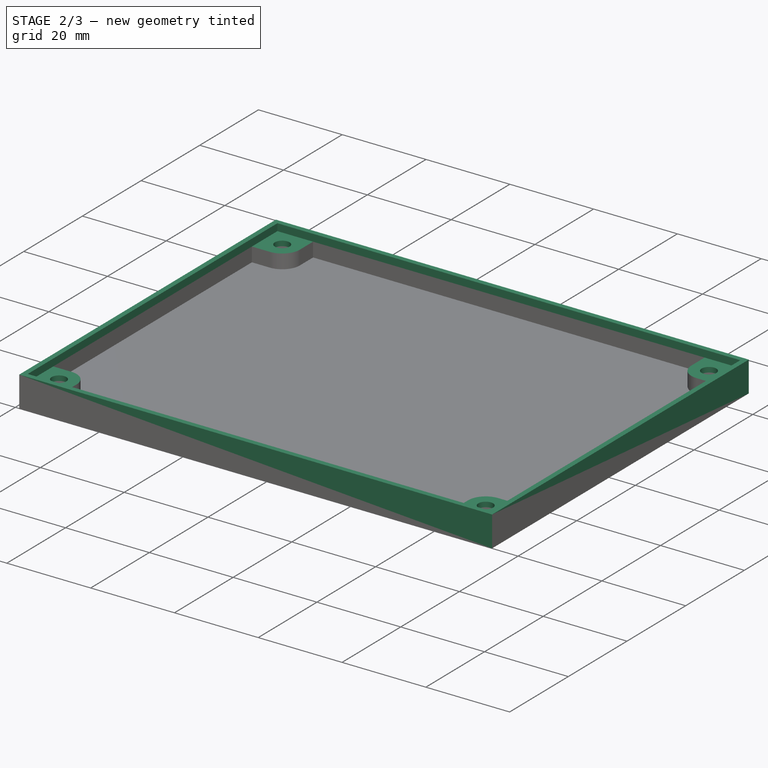
[diagram: stage 2 of 3 — iso view after this stage's code; geometry added in this stage tinted green]
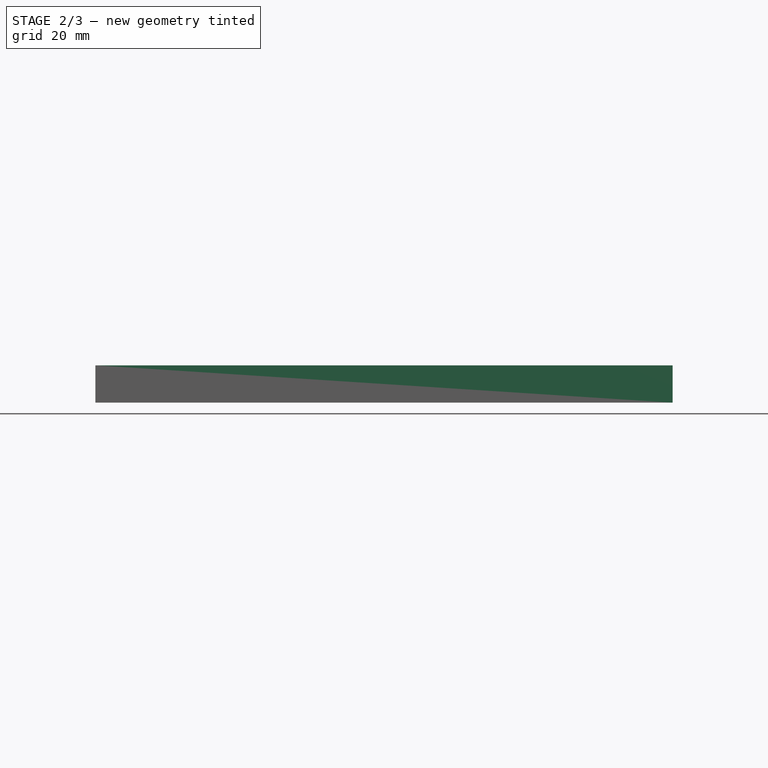
[diagram: stage 2 of 3 — front view after this stage's code; geometry added in this stage tinted green]
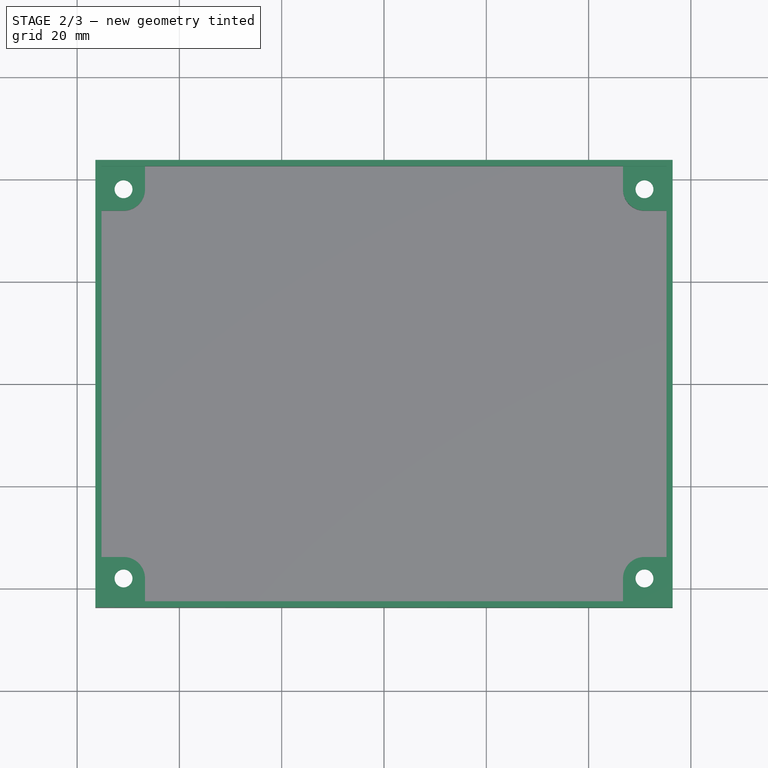
[diagram: stage 2 of 3 — top view after this stage's code; geometry added in this stage tinted green]
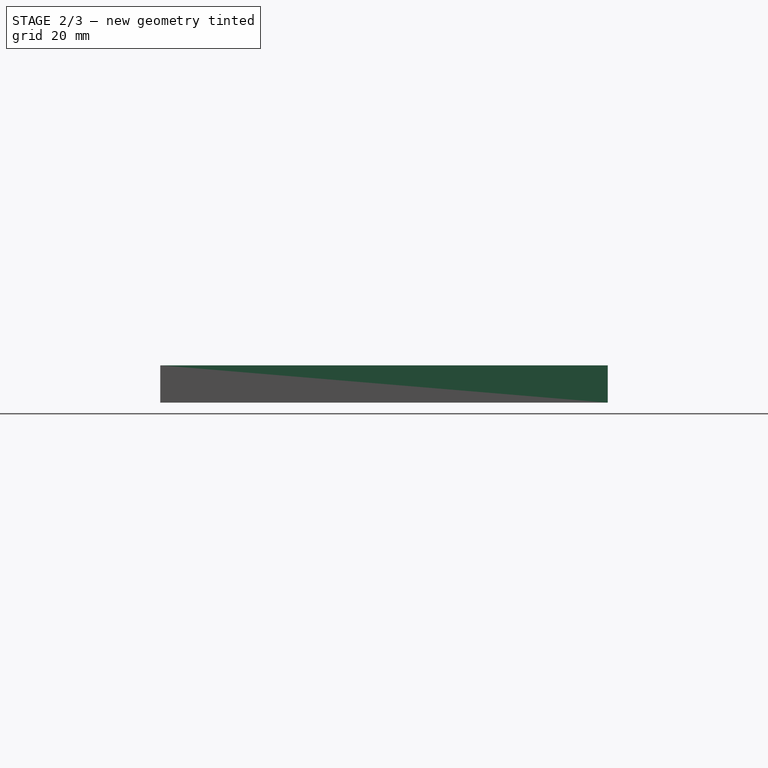
[diagram: stage 2 of 3 — right view after this stage's code; geometry added in this stage tinted green]
FEATURE [Sketcher::SketchObject] Sketch007  label="PCBHolder"
  MapMode = 5
  Placement = pos=(0,0,4.4) rot=(0,0,1;0rad)
  expr: Constraints[43] = Base__.Constraints.WallThickness
  expr: Constraints[115] = Base__.Constraints.Tolerance
  expr: Placement.Base.z = PCBSpacer.Placement.Base.z + PCBSpacer_.Length
  expr: Constraints[52] = Base__.Constraints.HoleDY
  expr: Constraints[51] = Base__.Constraints.HoleDX
  expr: Constraints[9] = Base__.Constraints.PCBWidth
  expr: Constraints[10] = Base__.Constraints.PCBLength
  expr: Constraints[64] = Screws.M3HeadRadius + 1.2mm
  expr: Constraints[47] = Screws.M3Radius
  sketch-geometry (52):
    g0: LineSegment [constr] StartX=-54.835 StartY=42.15 StartZ=0 EndX=54.835 EndY=42.15 EndZ=0
    g1: LineSegment [constr] StartX=54.835 StartY=42.15 StartZ=0 EndX=54.835 EndY=-42.15 EndZ=0
    g2: LineSegment [constr] StartX=54.835 StartY=-42.15 StartZ=0 EndX=-54.835 EndY=-42.15 EndZ=0
    g3: LineSegment [constr] StartX=-54.835 StartY=-42.15 StartZ=0 EndX=-54.835 EndY=42.15 EndZ=0
    g4: LineSegment StartX=55.235 StartY=33.85 StartZ=0 EndX=55.235 EndY=-33.85 EndZ=0
    g5: LineSegment StartX=-55.235 StartY=-33.85 StartZ=0 EndX=-55.235 EndY=33.85 EndZ=0
    g6: LineSegment [constr] StartX=54.835 StartY=-42.15 StartZ=0 EndX=55.235 EndY=-42.15 EndZ=0
    g7: LineSegment [constr] StartX=54.835 StartY=-42.15 StartZ=0 EndX=54.835 EndY=-42.55 EndZ=0
    g8: LineSegment [constr] StartX=-54.835 StartY=42.15 StartZ=0 EndX=-54.835 EndY=42.55 EndZ=0
    g9: LineSegment [constr] StartX=-54.835 StartY=42.15 StartZ=0 EndX=-55.235 EndY=42.15 EndZ=0
    g10: LineSegment StartX=-56.435 StartY=43.75 StartZ=0 EndX=56.435 EndY=43.75 EndZ=0
    g11: LineSegment StartX=56.435 StartY=43.75 StartZ=0 EndX=56.435 EndY=-43.75 EndZ=0
    g12: LineSegment StartX=56.435 StartY=-43.75 StartZ=0 EndX=-56.435 EndY=-43.75 EndZ=0
    g13: LineSegment StartX=-56.435 StartY=-43.75 StartZ=0 EndX=-56.435 EndY=43.75 EndZ=0
    g14: LineSegment [constr] StartX=55.235 StartY=-42.55 StartZ=0 EndX=56.435 EndY=-42.55 EndZ=0
    g15: LineSegment [constr] StartX=55.235 StartY=-42.55 StartZ=0 EndX=55.235 EndY=-43.75 EndZ=0
    g16: LineSegment [constr] StartX=-55.235 StartY=42.55 StartZ=0 EndX=-55.235 EndY=43.75 EndZ=0
    g17: LineSegment [constr] StartX=-55.235 StartY=42.55 StartZ=0 EndX=-56.435 EndY=42.55 EndZ=0
    g18: Circle CenterX=-50.925 CenterY=38.05 CenterZ=0 NormalX=0 NormalY=0 NormalZ=1 AngleXU=0 Radius=1.75
    g19: Circle CenterX=50.925 CenterY=38.05 CenterZ=0 NormalX=0 NormalY=0 NormalZ=1 AngleXU=0 Radius=1.75
    g20: Circle CenterX=50.925 CenterY=-38.05 CenterZ=0 NormalX=0 NormalY=0 NormalZ=1 AngleXU=0 Radius=1.75
    g21: Circle CenterX=-50.925 CenterY=-38.05 CenterZ=0 NormalX=0 NormalY=0 NormalZ=1 AngleXU=0 Radius=1.75
    g22: LineSegment StartX=-55.235 StartY=33.85 StartZ=0 EndX=-50.925 EndY=33.85 EndZ=0
    g23: LineSegment StartX=-46.725 StartY=42.55 StartZ=0 EndX=-46.725 EndY=38.05 EndZ=0
    g24: ArcOfCircle CenterX=-50.925 CenterY=38.05 CenterZ=0 NormalX=0 NormalY=0 NormalZ=1 AngleXU=0 Radius=4.2 StartAngle=4.71239 EndAngle=6.28319
    g25: LineSegment [constr] StartX=-50.925 StartY=38.05 StartZ=0 EndX=-46.725 EndY=38.05 EndZ=0
    g26: LineSegment [constr] StartX=-50.925 StartY=38.05 StartZ=0 EndX=-50.925 EndY=33.85 EndZ=0
    g27: LineSegment StartX=-46.725 StartY=42.55 StartZ=0 EndX=46.725 EndY=42.55 EndZ=0
    g28: LineSegment [constr] StartX=-55.235 StartY=33.85 StartZ=0 EndX=-55.235 EndY=42.55 EndZ=0
    g29: LineSegment [constr] StartX=-55.235 StartY=42.55 StartZ=0 EndX=-46.725 EndY=42.55 EndZ=0
    g30: ArcOfCircle CenterX=50.925 CenterY=38.05 CenterZ=0 NormalX=0 NormalY=0 NormalZ=1 AngleXU=0 Radius=4.2 StartAngle=3.14159 EndAngle=4.71239
    g31: LineSegment [constr] StartX=46.725 StartY=38.05 StartZ=0 EndX=50.925 EndY=38.05 EndZ=0
    g32: LineSegment [constr] StartX=50.925 StartY=33.85 StartZ=0 EndX=50.925 EndY=38.05 EndZ=0
    g33: LineSegment StartX=46.725 StartY=38.05 StartZ=0 EndX=46.725 EndY=42.55 EndZ=0
    g34: LineSegment StartX=50.925 StartY=33.85 StartZ=0 EndX=55.235 EndY=33.85 EndZ=0
    g35: ArcOfCircle CenterX=50.925 CenterY=-38.05 CenterZ=0 NormalX=0 NormalY=0 NormalZ=1 AngleXU=0 Radius=4.2 StartAngle=1.5708 EndAngle=3.14159
    g36: LineSegment StartX=50.925 StartY=-33.85 StartZ=0 EndX=55.235 EndY=-33.85 EndZ=0
    g37: LineSegment StartX=46.725 StartY=-38.05 StartZ=0 EndX=46.725 EndY=-42.55 EndZ=0
    g38: LineSegment StartX=46.725 StartY=-42.55 StartZ=0 EndX=-46.725 EndY=-42.55 EndZ=0
    g39: LineSegment [constr] StartX=46.725 StartY=-42.55 StartZ=0 EndX=55.235 EndY=-42.55 EndZ=0
    g40: LineSegment [constr] StartX=55.235 StartY=-42.55 StartZ=0 EndX=55.235 EndY=-33.85 EndZ=0
    g41: LineSegment [constr] StartX=50.925 StartY=-38.05 StartZ=0 EndX=50.925 EndY=-33.85 EndZ=0
    g42: LineSegment [constr] StartX=50.925 StartY=-38.05 StartZ=0 EndX=46.725 EndY=-38.05 EndZ=0
    g43: ArcOfCircle CenterX=-50.925 CenterY=-38.05 CenterZ=0 NormalX=0 NormalY=0 NormalZ=1 AngleXU=0 Radius=4.2 StartAngle=0 EndAngle=1.5708
    g44: LineSegment StartX=-50.925 StartY=-33.85 StartZ=0 EndX=-55.235 EndY=-33.85 EndZ=0
    g45: LineSegment StartX=-46.725 StartY=-38.05 StartZ=0 EndX=-46.725 EndY=-42.55 EndZ=0
    g46: LineSegment [constr] StartX=-50.925 StartY=-38.05 StartZ=0 EndX=-50.925 EndY=-33.85 EndZ=0
    g47: LineSegment [constr] StartX=-50.925 StartY=-38.05 StartZ=0 EndX=-46.725 EndY=-38.05 EndZ=0
    g48: LineSegment [constr] StartX=46.725 StartY=42.55 StartZ=0 EndX=55.235 EndY=42.55 EndZ=0
    g49: LineSegment [constr] StartX=55.235 StartY=42.55 StartZ=0 EndX=55.235 EndY=33.85 EndZ=0
    g50: LineSegment [constr] StartX=-55.235 StartY=-33.85 StartZ=0 EndX=-55.235 EndY=-42.55 EndZ=0
    g51: LineSegment [constr] StartX=-55.235 StartY=-42.55 StartZ=0 EndX=-46.725 EndY=-42.55 EndZ=0
  constraints (140):
    c: Coincident(g0,g1)
    c: Coincident(g1,g2)
    c: Coincident(g2,g3)
    c: Coincident(g3,g0)
    c: Horizontal(g0)
    c: Horizontal(g2)
    c: Vertical(g1)
    c: Vertical(g3)
    c: Symmetric(g0,g1,g-1)
    c: DistanceX(g0,g0) = 109.67
    c: DistanceY(g3,g3) = 84.3
    c: Vertical(g4)
    c: Vertical(g5)
    c: Coincident(g6,g1)
    c: Horizontal(g6)
    c: Coincident(g7,g1)
    c: Vertical(g7)
    c: Coincident(g8,g0)
    c: Vertical(g8)
    c: Coincident(g9,g0)
    c: Horizontal(g9)
    c: Equal(g6,g7)
    c: Equal(g7,g8)
    c: Equal(g8,g9)
    c: Coincident(g10,g11)
    c: Coincident(g11,g12)
    c: Coincident(g12,g13)
    c: Coincident(g13,g10)
    c: Horizontal(g10)
    c: Horizontal(g12)
    c: Vertical(g11)
    c: Vertical(g13)
    c: PointOnObject(g14,g11)
    c: Horizontal(g14)
    c: PointOnObject(g15,g12)
    c: Vertical(g15)
    c: PointOnObject(g16,g10)
    c: Vertical(g16)
    c: PointOnObject(g17,g13)
    c: Horizontal(g17)
    c: Equal(g14,g15)
    c: Equal(g15,g16)
    c: Equal(g16,g17)
    c: DistanceY(g15,g15) = 1.2
    c: Equal(g18,g19)
    c: Equal(g19,g20)
    c: Equal(g20,g21)
    c: Radius(g18) = 1.75
    c: Symmetric(g21,g18,g-1)
    c: Symmetric(g18,g19,g-2)
    c: Symmetric(g21,g20,g-2)
    c: DistanceX(g18,g19) = 101.85
    c: DistanceY(g21,g18) = 76.1
    c: Horizontal(g22)
    c: Vertical(g23)
    c: Coincident(g24,g18)
    c: Coincident(g24,g22)
    c: Coincident(g24,g23)
    c: Coincident(g25,g24)
    c: Coincident(g25,g23)
    c: Horizontal(g25)
    c: Coincident(g26,g24)
    c: Coincident(g26,g22)
    c: Vertical(g26)
    c: Radius(g24) = 4.2
    c: Coincident(g5,g22)
    c: Coincident(g27,g23)
    c: Coincident(g28,g5)
    c: Coincident(g28,g16)
    c: Vertical(g28)
    c: Coincident(g29,g16)
    c: Coincident(g29,g23)
    c: Horizontal(g29)
    c: PointOnObject(g8,g29)
    c: PointOnObject(g9,g28)
    c: Coincident(g16,g17)
    c: Horizontal(g27)
    c: Coincident(g30,g19)
    c: Equal(g30,g24)
    c: Coincident(g31,g30)
    c: Coincident(g31,g30)
    c: Horizontal(g31)
    c: Coincident(g32,g30)
    c: Coincident(g32,g30)
    c: Vertical(g32)
    c: Coincident(g33,g30)
    c: Vertical(g33)
    c: Coincident(g34,g30)
    c: Horizontal(g34)
    c: Coincident(g27,g33)
    c: Coincident(g4,g34)
    c: Coincident(g35,g20)
    c: Coincident(g36,g35)
    c: Horizontal(g36)
    c: Coincident(g37,g35)
    c: Vertical(g37)
    c: Equal(g30,g35)
    c: Coincident(g4,g36)
    c: Coincident(g39,g37)
    c: Coincident(g39,g14)
    c: Horizontal(g39)
    c: PointOnObject(g7,g39)
    c: Coincident(g14,g15)
    c: Coincident(g40,g14)
    c: Coincident(g40,g4)
    c: Vertical(g40)
    c: PointOnObject(g6,g40)
    c: Horizontal(g38)
    c: Coincident(g41,g35)
    c: Coincident(g41,g35)
    c: Vertical(g41)
    c: Coincident(g42,g35)
    c: Coincident(g42,g35)
    c: Horizontal(g42)
    c: Coincident(g37,g38)
    c: DistanceY(g14,g6) = 0.4
    c: Coincident(g43,g21)
    c: Coincident(g44,g43)
    c: Horizontal(g44)
    c: Coincident(g45,g43)
    c: Vertical(g45)
    c: Equal(g43,g35)
    c: Coincident(g46,g43)
    c: Coincident(g46,g43)
    c: Vertical(g46)
    c: Coincident(g47,g43)
    c: Coincident(g47,g43)
    c: Horizontal(g47)
    c: Coincident(g5,g44)
    c: Coincident(g38,g45)
    c: Coincident(g48,g27)
    c: Horizontal(g48)
    c: Coincident(g49,g48)
    c: Coincident(g49,g4)
    c: Vertical(g49)
    c: Coincident(g5,g50)
    c: Vertical(g50)
    c: Coincident(g50,g51)
    c: Coincident(g51,g38)
    c: Horizontal(g51)
FEATURE [PartDesign::Pad] Pad002  label="PCBHolder_"
  BaseFeature = -> Pad001
  Length = 1.2
  Length2 = 100
  Profile = -> Sketch007
  Type = 0
  expr: Length = Base__.Constraints.WallThickness
FEATURE [Sketcher::SketchObject] Sketch008  label="PCBWalls"
  MapMode = 5
  Placement = pos=(0,0,5.6) rot=(0,0,1;0rad)
  expr: Constraints[43] = Base__.Constraints.WallThickness
  expr: Constraints[115] = Base__.Constraints.Tolerance
  expr: Placement.Base.z = PCBHolder.Placement.Base.z + PCBHolder_.Length
  expr: Constraints[52] = Base__.Constraints.HoleDY
  expr: Constraints[51] = Base__.Constraints.HoleDX
  expr: Constraints[9] = Base__.Constraints.PCBWidth
  expr: Constraints[10] = Base__.Constraints.PCBLength
  expr: Constraints[64] = Screws.M3HeadRadius + 1.2mm
  expr: Constraints[47] = Screws.M3Radius
  sketch-geometry (52):
    g0: LineSegment [constr] StartX=-54.835 StartY=42.15 StartZ=0 EndX=54.835 EndY=42.15 EndZ=0
    g1: LineSegment [constr] StartX=54.835 StartY=42.15 StartZ=0 EndX=54.835 EndY=-42.15 EndZ=0
    g2: LineSegment [constr] StartX=54.835 StartY=-42.15 StartZ=0 EndX=-54.835 EndY=-42.15 EndZ=0
    g3: LineSegment [constr] StartX=-54.835 StartY=-42.15 StartZ=0 EndX=-54.835 EndY=42.15 EndZ=0
    g4: LineSegment StartX=55.235 StartY=33.85 StartZ=0 EndX=55.235 EndY=-33.85 EndZ=0
    g5: LineSegment StartX=-55.235 StartY=-33.85 StartZ=0 EndX=-55.235 EndY=33.85 EndZ=0
    g6: LineSegment [constr] StartX=54.835 StartY=-42.15 StartZ=0 EndX=55.235 EndY=-42.15 EndZ=0
    g7: LineSegment [constr] StartX=54.835 StartY=-42.15 StartZ=0 EndX=54.835 EndY=-42.55 EndZ=0
    g8: LineSegment [constr] StartX=-54.835 StartY=42.15 StartZ=0 EndX=-54.835 EndY=42.55 EndZ=0
    g9: LineSegment [constr] StartX=-54.835 StartY=42.15 StartZ=0 EndX=-55.235 EndY=42.15 EndZ=0
    g10: LineSegment StartX=-56.435 StartY=43.75 StartZ=0 EndX=56.435 EndY=43.75 EndZ=0
    g11: LineSegment StartX=56.435 StartY=43.75 StartZ=0 EndX=56.435 EndY=-43.75 EndZ=0
    g12: LineSegment StartX=56.435 StartY=-43.75 StartZ=0 EndX=-56.435 EndY=-43.75 EndZ=0
    g13: LineSegment StartX=-56.435 StartY=-43.75 StartZ=0 EndX=-56.435 EndY=43.75 EndZ=0
    g14: LineSegment [constr] StartX=55.235 StartY=-42.55 StartZ=0 EndX=56.435 EndY=-42.55 EndZ=0
    g15: LineSegment [constr] StartX=55.235 StartY=-42.55 StartZ=0 EndX=55.235 EndY=-43.75 EndZ=0
    g16: LineSegment [constr] StartX=-55.235 StartY=42.55 StartZ=0 EndX=-55.235 EndY=43.75 EndZ=0
    g17: LineSegment [constr] StartX=-55.235 StartY=42.55 StartZ=0 EndX=-56.435 EndY=42.55 EndZ=0
    g18: Circle [constr] CenterX=-50.925 CenterY=38.05 CenterZ=0 NormalX=0 NormalY=0 NormalZ=1 AngleXU=0 Radius=1.75
    g19: Circle [constr] CenterX=50.925 CenterY=38.05 CenterZ=0 NormalX=0 NormalY=0 NormalZ=1 AngleXU=0 Radius=1.75
    g20: Circle [constr] CenterX=50.925 CenterY=-38.05 CenterZ=0 NormalX=0 NormalY=0 NormalZ=1 AngleXU=0 Radius=1.75
    g21: Circle [constr] CenterX=-50.925 CenterY=-38.05 CenterZ=0 NormalX=0 NormalY=0 NormalZ=1 AngleXU=0 Radius=1.75
    g22: LineSegment [constr] StartX=-55.235 StartY=33.85 StartZ=0 EndX=-50.925 EndY=33.85 EndZ=0
    g23: LineSegment [constr] StartX=-46.725 StartY=42.55 StartZ=0 EndX=-46.725 EndY=38.05 EndZ=0
    g24: ArcOfCircle [constr] CenterX=-50.925 CenterY=38.05 CenterZ=0 NormalX=0 NormalY=0 NormalZ=1 AngleXU=0 Radius=4.2 StartAngle=4.71239 EndAngle=6.28319
    g25: LineSegment [constr] StartX=-50.925 StartY=38.05 StartZ=0 EndX=-46.725 EndY=38.05 EndZ=0
    g26: LineSegment [constr] StartX=-50.925 StartY=38.05 StartZ=0 EndX=-50.925 EndY=33.85 EndZ=0
    g27: LineSegment StartX=-46.725 StartY=42.55 StartZ=0 EndX=46.725 EndY=42.55 EndZ=0
    g28: LineSegment StartX=-55.235 StartY=33.85 StartZ=0 EndX=-55.235 EndY=42.55 EndZ=0
    g29: LineSegment StartX=-55.235 StartY=42.55 StartZ=0 EndX=-46.725 EndY=42.55 EndZ=0
    g30: ArcOfCircle [constr] CenterX=50.925 CenterY=38.05 CenterZ=0 NormalX=0 NormalY=0 NormalZ=1 AngleXU=0 Radius=4.2 StartAngle=3.14159 EndAngle=4.71239
    g31: LineSegment [constr] StartX=46.725 StartY=38.05 StartZ=0 EndX=50.925 EndY=38.05 EndZ=0
    g32: LineSegment [constr] StartX=50.925 StartY=33.85 StartZ=0 EndX=50.925 EndY=38.05 EndZ=0
    g33: LineSegment [constr] StartX=46.725 StartY=38.05 StartZ=0 EndX=46.725 EndY=42.55 EndZ=0
    g34: LineSegment [constr] StartX=50.925 StartY=33.85 StartZ=0 EndX=55.235 EndY=33.85 EndZ=0
    g35: ArcOfCircle [constr] CenterX=50.925 CenterY=-38.05 CenterZ=0 NormalX=0 NormalY=0 NormalZ=1 AngleXU=0 Radius=4.2 StartAngle=1.5708 EndAngle=3.14159
    g36: LineSegment [constr] StartX=50.925 StartY=-33.85 StartZ=0 EndX=55.235 EndY=-33.85 EndZ=0
    g37: LineSegment [constr] StartX=46.725 StartY=-38.05 StartZ=0 EndX=46.725 EndY=-42.55 EndZ=0
    g38: LineSegment StartX=46.725 StartY=-42.55 StartZ=0 EndX=-46.725 EndY=-42.55 EndZ=0
    g39: LineSegment StartX=46.725 StartY=-42.55 StartZ=0 EndX=55.235 EndY=-42.55 EndZ=0
    g40: LineSegment StartX=55.235 StartY=-42.55 StartZ=0 EndX=55.235 EndY=-33.85 EndZ=0
    g41: LineSegment [constr] StartX=50.925 StartY=-38.05 StartZ=0 EndX=50.925 EndY=-33.85 EndZ=0
    g42: LineSegment [constr] StartX=50.925 StartY=-38.05 StartZ=0 EndX=46.725 EndY=-38.05 EndZ=0
    g43: ArcOfCircle [constr] CenterX=-50.925 CenterY=-38.05 CenterZ=0 NormalX=0 NormalY=0 NormalZ=1 AngleXU=0 Radius=4.2 StartAngle=0 EndAngle=1.5708
    g44: LineSegment [constr] StartX=-50.925 StartY=-33.85 StartZ=0 EndX=-55.235 EndY=-33.85 EndZ=0
    g45: LineSegment [constr] StartX=-46.725 StartY=-38.05 StartZ=0 EndX=-46.725 EndY=-42.55 EndZ=0
    g46: LineSegment [constr] StartX=-50.925 StartY=-38.05 StartZ=0 EndX=-50.925 EndY=-33.85 EndZ=0
    g47: LineSegment [constr] StartX=-50.925 StartY=-38.05 StartZ=0 EndX=-46.725 EndY=-38.05 EndZ=0
    g48: LineSegment StartX=46.725 StartY=42.55 StartZ=0 EndX=55.235 EndY=42.55 EndZ=0
    g49: LineSegment StartX=55.235 StartY=42.55 StartZ=0 EndX=55.235 EndY=33.85 EndZ=0
    g50: LineSegment StartX=-55.235 StartY=-33.85 StartZ=0 EndX=-55.235 EndY=-42.55 EndZ=0
    g51: LineSegment StartX=-55.235 StartY=-42.55 StartZ=0 EndX=-46.725 EndY=-42.55 EndZ=0
  constraints (140):
    c: Coincident(g0,g1)
    c: Coincident(g1,g2)
    c: Coincident(g2,g3)
    c: Coincident(g3,g0)
    c: Horizontal(g0)
    c: Horizontal(g2)
    c: Vertical(g1)
    c: Vertical(g3)
    c: Symmetric(g0,g1,g-1)
    c: DistanceX(g0,g0) = 109.67
    c: DistanceY(g3,g3) = 84.3
    c: Vertical(g4)
    c: Vertical(g5)
    c: Coincident(g6,g1)
    c: Horizontal(g6)
    c: Coincident(g7,g1)
    c: Vertical(g7)
    c: Coincident(g8,g0)
    c: Vertical(g8)
    c: Coincident(g9,g0)
    c: Horizontal(g9)
    c: Equal(g6,g7)
    c: Equal(g7,g8)
    c: Equal(g8,g9)
    c: Coincident(g10,g11)
    c: Coincident(g11,g12)
    c: Coincident(g12,g13)
    c: Coincident(g13,g10)
    c: Horizontal(g10)
    c: Horizontal(g12)
    c: Vertical(g11)
    c: Vertical(g13)
    c: PointOnObject(g14,g11)
    c: Horizontal(g14)
    c: PointOnObject(g15,g12)
    c: Vertical(g15)
    c: PointOnObject(g16,g10)
    c: Vertical(g16)
    c: PointOnObject(g17,g13)
    c: Horizontal(g17)
    c: Equal(g14,g15)
    c: Equal(g15,g16)
    c: Equal(g16,g17)
    c: DistanceY(g15,g15) = 1.2
    c: Equal(g18,g19)
    c: Equal(g19,g20)
    c: Equal(g20,g21)
    c: Radius(g18) = 1.75
    c: Symmetric(g21,g18,g-1)
    c: Symmetric(g18,g19,g-2)
    c: Symmetric(g21,g20,g-2)
    c: DistanceX(g18,g19) = 101.85
    c: DistanceY(g21,g18) = 76.1
    c: Horizontal(g22)
    c: Vertical(g23)
    c: Coincident(g24,g18)
    c: Coincident(g24,g22)
    c: Coincident(g24,g23)
    c: Coincident(g25,g24)
    c: Coincident(g25,g23)
    c: Horizontal(g25)
    c: Coincident(g26,g24)
    c: Coincident(g26,g22)
    c: Vertical(g26)
    c: Radius(g24) = 4.2
    c: Coincident(g5,g22)
    c: Coincident(g27,g23)
    c: Coincident(g28,g5)
    c: Coincident(g28,g16)
    c: Vertical(g28)
    c: Coincident(g29,g16)
    c: Coincident(g29,g23)
    c: Horizontal(g29)
    c: PointOnObject(g8,g29)
    c: PointOnObject(g9,g28)
    c: Coincident(g16,g17)
    c: Horizontal(g27)
    c: Coincident(g30,g19)
    c: Equal(g30,g24)
    c: Coincident(g31,g30)
    c: Coincident(g31,g30)
    c: Horizontal(g31)
    c: Coincident(g32,g30)
    c: Coincident(g32,g30)
    c: Vertical(g32)
    c: Coincident(g33,g30)
    c: Vertical(g33)
    c: Coincident(g34,g30)
    c: Horizontal(g34)
    c: Coincident(g27,g33)
    c: Coincident(g4,g34)
    c: Coincident(g35,g20)
    c: Coincident(g36,g35)
    c: Horizontal(g36)
    c: Coincident(g37,g35)
    c: Vertical(g37)
    c: Equal(g30,g35)
    c: Coincident(g4,g36)
    c: Coincident(g39,g37)
    c: Coincident(g39,g14)
    c: Horizontal(g39)
    c: PointOnObject(g7,g39)
    c: Coincident(g14,g15)
    c: Coincident(g40,g14)
    c: Coincident(g40,g4)
    c: Vertical(g40)
    c: PointOnObject(g6,g40)
    c: Horizontal(g38)
    c: Coincident(g41,g35)
    c: Coincident(g41,g35)
    c: Vertical(g41)
    c: Coincident(g42,g35)
    c: Coincident(g42,g35)
    c: Horizontal(g42)
    c: Coincident(g37,g38)
    c: DistanceY(g14,g6) = 0.4
    c: Coincident(g43,g21)
    c: Coincident(g44,g43)
    c: Horizontal(g44)
    c: Coincident(g45,g43)
    c: Vertical(g45)
    c: Equal(g43,g35)
    c: Coincident(g46,g43)
    c: Coincident(g46,g43)
    c: Vertical(g46)
    c: Coincident(g47,g43)
    c: Coincident(g47,g43)
    c: Horizontal(g47)
    c: Coincident(g5,g44)
    c: Coincident(g38,g45)
    c: Coincident(g48,g27)
    c: Horizontal(g48)
    c: Coincident(g49,g48)
    c: Coincident(g49,g4)
    c: Vertical(g49)
    c: Coincident(g5,g50)
    c: Vertical(g50)
    c: Coincident(g50,g51)
    c: Coincident(g51,g38)
    c: Horizontal(g51)
FEATURE [PartDesign::Pad] Pad003  label="PCBWalls_"
  BaseFeature = -> Pad002
  Length = 1.7
  Length2 = 100
  Profile = -> Sketch008
  Refine = true
  Type = 0
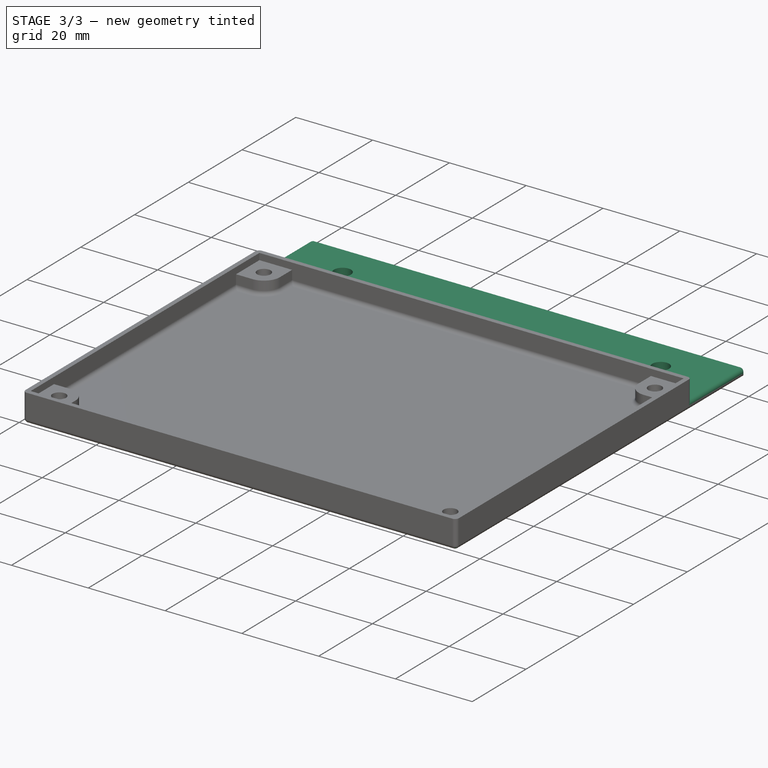
[diagram: stage 3 of 3 — iso view after this stage's code; geometry added in this stage tinted green]
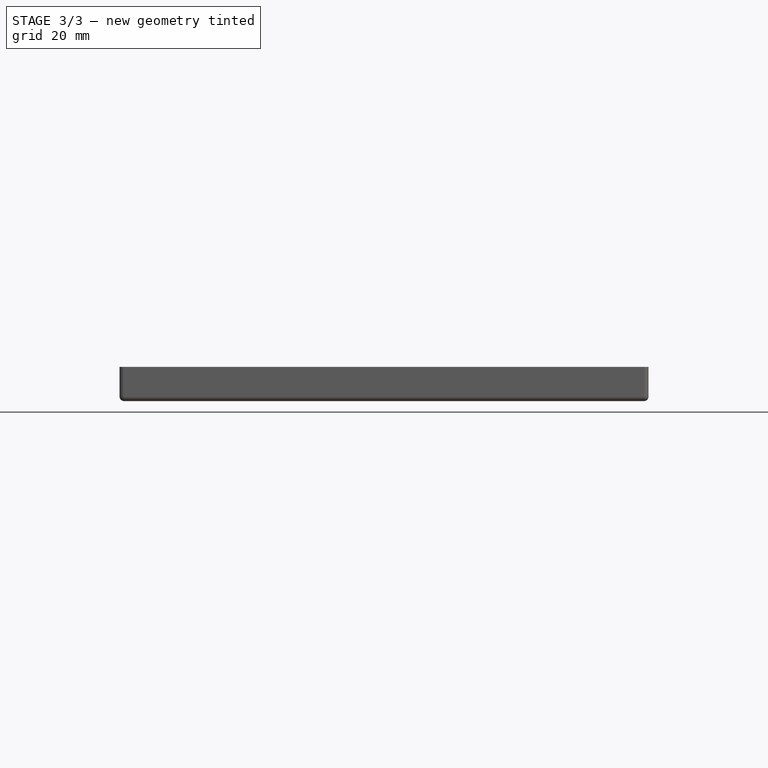
[diagram: stage 3 of 3 — front view after this stage's code; geometry added in this stage tinted green]
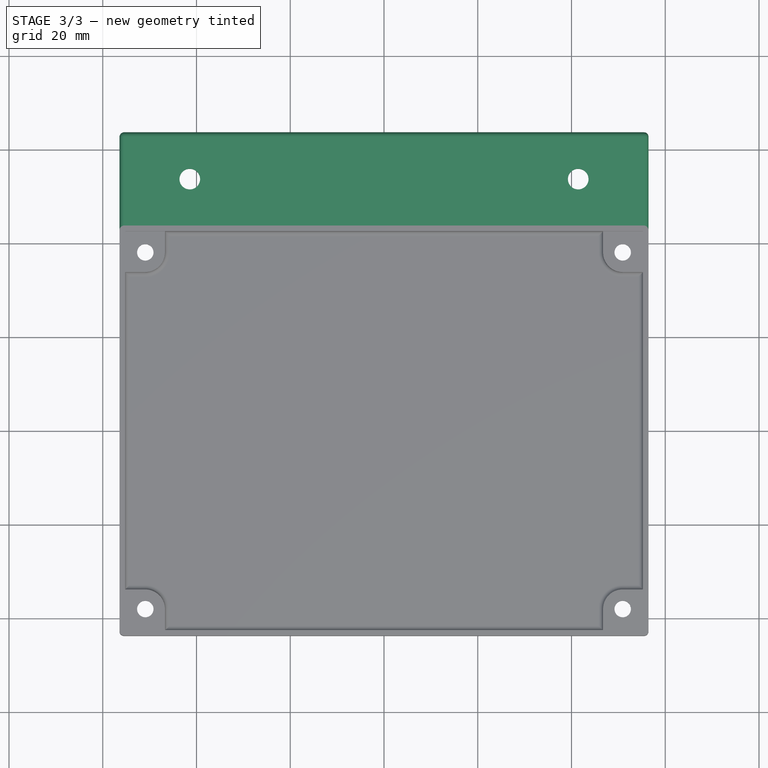
[diagram: stage 3 of 3 — top view after this stage's code; geometry added in this stage tinted green]
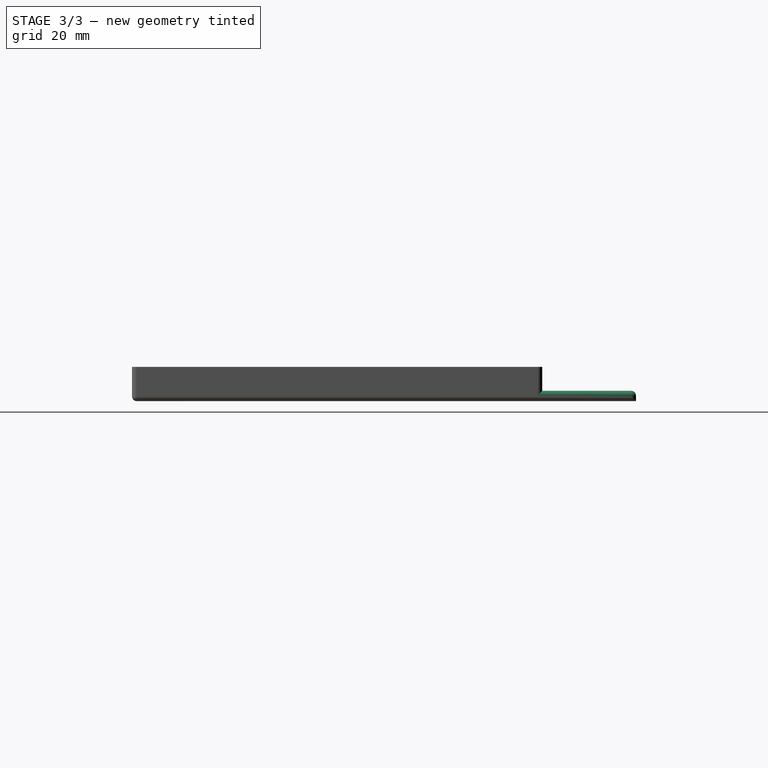
[diagram: stage 3 of 3 — right view after this stage's code; geometry added in this stage tinted green]
FEATURE [Sketcher::SketchObject] Sketch009  label="PCBWalls001"
  MapMode = 5
  Placement = pos=(0,0,5.6) rot=(0,0,1;0rad)
  expr: Constraints[43] = Base__.Constraints.WallThickness
  expr: Constraints[115] = Base__.Constraints.Tolerance
  expr: Placement.Base.z = PCBHolder.Placement.Base.z + PCBHolder_.Length
  expr: Constraints[52] = Base__.Constraints.HoleDY
  expr: Constraints[51] = Base__.Constraints.HoleDX
  expr: Constraints[9] = Base__.Constraints.PCBWidth
  expr: Constraints[10] = Base__.Constraints.PCBLength
  expr: Constraints[64] = Screws.M3HeadRadius + 1.2mm
  expr: Constraints[47] = Screws.M3Radius
  sketch-geometry (52):
    g0: LineSegment [constr] StartX=-54.835 StartY=42.15 StartZ=0 EndX=54.835 EndY=42.15 EndZ=0
    g1: LineSegment [constr] StartX=54.835 StartY=42.15 StartZ=0 EndX=54.835 EndY=-42.15 EndZ=0
    g2: LineSegment [constr] StartX=54.835 StartY=-42.15 StartZ=0 EndX=-54.835 EndY=-42.15 EndZ=0
    g3: LineSegment [constr] StartX=-54.835 StartY=-42.15 StartZ=0 EndX=-54.835 EndY=42.15 EndZ=0
    g4: LineSegment StartX=55.235 StartY=33.85 StartZ=0 EndX=55.235 EndY=-33.85 EndZ=0
    g5: LineSegment StartX=-55.235 StartY=-33.85 StartZ=0 EndX=-55.235 EndY=33.85 EndZ=0
    g6: LineSegment [constr] StartX=54.835 StartY=-42.15 StartZ=0 EndX=55.235 EndY=-42.15 EndZ=0
    g7: LineSegment [constr] StartX=54.835 StartY=-42.15 StartZ=0 EndX=54.835 EndY=-42.55 EndZ=0
    g8: LineSegment [constr] StartX=-54.835 StartY=42.15 StartZ=0 EndX=-54.835 EndY=42.55 EndZ=0
    g9: LineSegment [constr] StartX=-54.835 StartY=42.15 StartZ=0 EndX=-55.235 EndY=42.15 EndZ=0
    g10: LineSegment StartX=-56.435 StartY=43.75 StartZ=0 EndX=56.435 EndY=43.75 EndZ=0
    g11: LineSegment StartX=56.435 StartY=43.75 StartZ=0 EndX=56.435 EndY=-43.75 EndZ=0
    g12: LineSegment StartX=56.435 StartY=-43.75 StartZ=0 EndX=-56.435 EndY=-43.75 EndZ=0
    g13: LineSegment StartX=-56.435 StartY=-43.75 StartZ=0 EndX=-56.435 EndY=43.75 EndZ=0
    g14: LineSegment [constr] StartX=55.235 StartY=-42.55 StartZ=0 EndX=56.435 EndY=-42.55 EndZ=0
    g15: LineSegment [constr] StartX=55.235 StartY=-42.55 StartZ=0 EndX=55.235 EndY=-43.75 EndZ=0
    g16: LineSegment [constr] StartX=-55.235 StartY=42.55 StartZ=0 EndX=-55.235 EndY=43.75 EndZ=0
    g17: LineSegment [constr] StartX=-55.235 StartY=42.55 StartZ=0 EndX=-56.435 EndY=42.55 EndZ=0
    g18: Circle [constr] CenterX=-50.925 CenterY=38.05 CenterZ=0 NormalX=0 NormalY=0 NormalZ=1 AngleXU=0 Radius=1.75
    g19: Circle [constr] CenterX=50.925 CenterY=38.05 CenterZ=0 NormalX=0 NormalY=0 NormalZ=1 AngleXU=0 Radius=1.75
    g20: Circle [constr] CenterX=50.925 CenterY=-38.05 CenterZ=0 NormalX=0 NormalY=0 NormalZ=1 AngleXU=0 Radius=1.75
    g21: Circle [constr] CenterX=-50.925 CenterY=-38.05 CenterZ=0 NormalX=0 NormalY=0 NormalZ=1 AngleXU=0 Radius=1.75
    g22: LineSegment [constr] StartX=-55.235 StartY=33.85 StartZ=0 EndX=-50.925 EndY=33.85 EndZ=0
    g23: LineSegment [constr] StartX=-46.725 StartY=42.55 StartZ=0 EndX=-46.725 EndY=38.05 EndZ=0
    g24: ArcOfCircle [constr] CenterX=-50.925 CenterY=38.05 CenterZ=0 NormalX=0 NormalY=0 NormalZ=1 AngleXU=0 Radius=4.2 StartAngle=4.71239 EndAngle=6.28319
    g25: LineSegment [constr] StartX=-50.925 StartY=38.05 StartZ=0 EndX=-46.725 EndY=38.05 EndZ=0
    g26: LineSegment [constr] StartX=-50.925 StartY=38.05 StartZ=0 EndX=-50.925 EndY=33.85 EndZ=0
    g27: LineSegment StartX=-46.725 StartY=42.55 StartZ=0 EndX=46.725 EndY=42.55 EndZ=0
    g28: LineSegment StartX=-55.235 StartY=33.85 StartZ=0 EndX=-55.235 EndY=42.55 EndZ=0
    g29: LineSegment StartX=-55.235 StartY=42.55 StartZ=0 EndX=-46.725 EndY=42.55 EndZ=0
    g30: ArcOfCircle [constr] CenterX=50.925 CenterY=38.05 CenterZ=0 NormalX=0 NormalY=0 NormalZ=1 AngleXU=0 Radius=4.2 StartAngle=3.14159 EndAngle=4.71239
    g31: LineSegment [constr] StartX=46.725 StartY=38.05 StartZ=0 EndX=50.925 EndY=38.05 EndZ=0
    g32: LineSegment [constr] StartX=50.925 StartY=33.85 StartZ=0 EndX=50.925 EndY=38.05 EndZ=0
    g33: LineSegment [constr] StartX=46.725 StartY=38.05 StartZ=0 EndX=46.725 EndY=42.55 EndZ=0
    g34: LineSegment [constr] StartX=50.925 StartY=33.85 StartZ=0 EndX=55.235 EndY=33.85 EndZ=0
    g35: ArcOfCircle [constr] CenterX=50.925 CenterY=-38.05 CenterZ=0 NormalX=0 NormalY=0 NormalZ=1 AngleXU=0 Radius=4.2 StartAngle=1.5708 EndAngle=3.14159
    g36: LineSegment [constr] StartX=50.925 StartY=-33.85 StartZ=0 EndX=55.235 EndY=-33.85 EndZ=0
    g37: LineSegment [constr] StartX=46.725 StartY=-38.05 StartZ=0 EndX=46.725 EndY=-42.55 EndZ=0
    g38: LineSegment StartX=46.725 StartY=-42.55 StartZ=0 EndX=-46.725 EndY=-42.55 EndZ=0
    g39: LineSegment StartX=46.725 StartY=-42.55 StartZ=0 EndX=55.235 EndY=-42.55 EndZ=0
    g40: LineSegment StartX=55.235 StartY=-42.55 StartZ=0 EndX=55.235 EndY=-33.85 EndZ=0
    g41: LineSegment [constr] StartX=50.925 StartY=-38.05 StartZ=0 EndX=50.925 EndY=-33.85 EndZ=0
    g42: LineSegment [constr] StartX=50.925 StartY=-38.05 StartZ=0 EndX=46.725 EndY=-38.05 EndZ=0
    g43: ArcOfCircle [constr] CenterX=-50.925 CenterY=-38.05 CenterZ=0 NormalX=0 NormalY=0 NormalZ=1 AngleXU=0 Radius=4.2 StartAngle=0 EndAngle=1.5708
    g44: LineSegment [constr] StartX=-50.925 StartY=-33.85 StartZ=0 EndX=-55.235 EndY=-33.85 EndZ=0
    g45: LineSegment [constr] StartX=-46.725 StartY=-38.05 StartZ=0 EndX=-46.725 EndY=-42.55 EndZ=0
    g46: LineSegment [constr] StartX=-50.925 StartY=-38.05 StartZ=0 EndX=-50.925 EndY=-33.85 EndZ=0
    g47: LineSegment [constr] StartX=-50.925 StartY=-38.05 StartZ=0 EndX=-46.725 EndY=-38.05 EndZ=0
    g48: LineSegment StartX=46.725 StartY=42.55 StartZ=0 EndX=55.235 EndY=42.55 EndZ=0
    g49: LineSegment StartX=55.235 StartY=42.55 StartZ=0 EndX=55.235 EndY=33.85 EndZ=0
    g50: LineSegment StartX=-55.235 StartY=-33.85 StartZ=0 EndX=-55.235 EndY=-42.55 EndZ=0
    g51: LineSegment StartX=-55.235 StartY=-42.55 StartZ=0 EndX=-46.725 EndY=-42.55 EndZ=0
  constraints (140):
    c: Coincident(g0,g1)
    c: Coincident(g1,g2)
    c: Coincident(g2,g3)
    c: Coincident(g3,g0)
    c: Horizontal(g0)
    c: Horizontal(g2)
    c: Vertical(g1)
    c: Vertical(g3)
    c: Symmetric(g0,g1,g-1)
    c: DistanceX(g0,g0) = 109.67
    c: DistanceY(g3,g3) = 84.3
    c: Vertical(g4)
    c: Vertical(g5)
    c: Coincident(g6,g1)
    c: Horizontal(g6)
    c: Coincident(g7,g1)
    c: Vertical(g7)
    c: Coincident(g8,g0)
    c: Vertical(g8)
    c: Coincident(g9,g0)
    c: Horizontal(g9)
    c: Equal(g6,g7)
    c: Equal(g7,g8)
    c: Equal(g8,g9)
    c: Coincident(g10,g11)
    c: Coincident(g11,g12)
    c: Coincident(g12,g13)
    c: Coincident(g13,g10)
    c: Horizontal(g10)
    c: Horizontal(g12)
    c: Vertical(g11)
    c: Vertical(g13)
    c: PointOnObject(g14,g11)
    c: Horizontal(g14)
    c: PointOnObject(g15,g12)
    c: Vertical(g15)
    c: PointOnObject(g16,g10)
    c: Vertical(g16)
    c: PointOnObject(g17,g13)
    c: Horizontal(g17)
    c: Equal(g14,g15)
    c: Equal(g15,g16)
    c: Equal(g16,g17)
    c: DistanceY(g15,g15) = 1.2
    c: Equal(g18,g19)
    c: Equal(g19,g20)
    c: Equal(g20,g21)
    c: Radius(g18) = 1.75
    c: Symmetric(g21,g18,g-1)
    c: Symmetric(g18,g19,g-2)
    c: Symmetric(g21,g20,g-2)
    c: DistanceX(g18,g19) = 101.85
    c: DistanceY(g21,g18) = 76.1
    c: Horizontal(g22)
    c: Vertical(g23)
    c: Coincident(g24,g18)
    c: Coincident(g24,g22)
    c: Coincident(g24,g23)
    c: Coincident(g25,g24)
    c: Coincident(g25,g23)
    c: Horizontal(g25)
    c: Coincident(g26,g24)
    c: Coincident(g26,g22)
    c: Vertical(g26)
    c: Radius(g24) = 4.2
    c: Coincident(g5,g22)
    c: Coincident(g27,g23)
    c: Coincident(g28,g5)
    c: Coincident(g28,g16)
    c: Vertical(g28)
    c: Coincident(g29,g16)
    c: Coincident(g29,g23)
    c: Horizontal(g29)
    c: PointOnObject(g8,g29)
    c: PointOnObject(g9,g28)
    c: Coincident(g16,g17)
    c: Horizontal(g27)
    c: Coincident(g30,g19)
    c: Equal(g30,g24)
    c: Coincident(g31,g30)
    c: Coincident(g31,g30)
    c: Horizontal(g31)
    c: Coincident(g32,g30)
    c: Coincident(g32,g30)
    c: Vertical(g32)
    c: Coincident(g33,g30)
    c: Vertical(g33)
    c: Coincident(g34,g30)
    c: Horizontal(g34)
    c: Coincident(g27,g33)
    c: Coincident(g4,g34)
    c: Coincident(g35,g20)
    c: Coincident(g36,g35)
    c: Horizontal(g36)
    c: Coincident(g37,g35)
    c: Vertical(g37)
    c: Equal(g30,g35)
    c: Coincident(g4,g36)
    c: Coincident(g39,g37)
    c: Coincident(g39,g14)
    c: Horizontal(g39)
    c: PointOnObject(g7,g39)
    c: Coincident(g14,g15)
    c: Coincident(g40,g14)
    c: Coincident(g40,g4)
    c: Vertical(g40)
    c: PointOnObject(g6,g40)
    c: Horizontal(g38)
    c: Coincident(g41,g35)
    c: Coincident(g41,g35)
    c: Vertical(g41)
    c: Coincident(g42,g35)
    c: Coincident(g42,g35)
    c: Horizontal(g42)
    c: Coincident(g37,g38)
    c: DistanceY(g14,g6) = 0.4
    c: Coincident(g43,g21)
    c: Coincident(g44,g43)
    c: Horizontal(g44)
    c: Coincident(g45,g43)
    c: Vertical(g45)
    c: Equal(g43,g35)
    c: Coincident(g46,g43)
    c: Coincident(g46,g43)
    c: Vertical(g46)
    c: Coincident(g47,g43)
    c: Coincident(g47,g43)
    c: Horizontal(g47)
    c: Coincident(g5,g44)
    c: Coincident(g38,g45)
    c: Coincident(g48,g27)
    c: Horizontal(g48)
    c: Coincident(g49,g48)
    c: Coincident(g49,g4)
    c: Vertical(g49)
    c: Coincident(g5,g50)
    c: Vertical(g50)
    c: Coincident(g50,g51)
    c: Coincident(g51,g38)
    c: Horizontal(g51)
FEATURE [PartDesign::Body] Body001
  Group = -> [Sketch009]
  Origin = -> Origin002
FEATURE [Sketcher::SketchObject] Sketch010  label="Flaps"
  MapMode = 5
  expr: Constraints[154] = Screws.M4Radius
  expr: Constraints[43] = Base__.Constraints.WallThickness
  expr: Constraints[115] = Base__.Constraints.Tolerance
  expr: Constraints[52] = Base__.Constraints.HoleDY
  expr: Constraints[51] = Base__.Constraints.HoleDX
  expr: Constraints[9] = Base__.Constraints.PCBWidth
  expr: Constraints[10] = Base__.Constraints.PCBLength
  expr: Constraints[64] = Screws.M3HeadRadius + 1.2mm
  expr: Constraints[47] = Screws.M3Radius
  sketch-geometry (58):
    g0: LineSegment [constr] StartX=-54.835 StartY=42.15 StartZ=0 EndX=54.835 EndY=42.15 EndZ=0
    g1: LineSegment [constr] StartX=54.835 StartY=42.15 StartZ=0 EndX=54.835 EndY=-42.15 EndZ=0
    g2: LineSegment [constr] StartX=54.835 StartY=-42.15 StartZ=0 EndX=-54.835 EndY=-42.15 EndZ=0
    g3: LineSegment [constr] StartX=-54.835 StartY=-42.15 StartZ=0 EndX=-54.835 EndY=42.15 EndZ=0
    g4: LineSegment [constr] StartX=55.235 StartY=33.85 StartZ=0 EndX=55.235 EndY=-33.85 EndZ=0
    g5: LineSegment [constr] StartX=-55.235 StartY=-33.85 StartZ=0 EndX=-55.235 EndY=33.85 EndZ=0
    g6: LineSegment [constr] StartX=54.835 StartY=-42.15 StartZ=0 EndX=55.235 EndY=-42.15 EndZ=0
    g7: LineSegment [constr] StartX=54.835 StartY=-42.15 StartZ=0 EndX=54.835 EndY=-42.55 EndZ=0
    g8: LineSegment [constr] StartX=-54.835 StartY=42.15 StartZ=0 EndX=-54.835 EndY=42.55 EndZ=0
    g9: LineSegment [constr] StartX=-54.835 StartY=42.15 StartZ=0 EndX=-55.235 EndY=42.15 EndZ=0
    g10: LineSegment StartX=-56.435 StartY=43.75 StartZ=0 EndX=56.435 EndY=43.75 EndZ=0
    g11: LineSegment [constr] StartX=56.435 StartY=43.75 StartZ=0 EndX=56.435 EndY=-43.75 EndZ=0
    g12: LineSegment [constr] StartX=56.435 StartY=-43.75 StartZ=0 EndX=-56.435 EndY=-43.75 EndZ=0
    g13: LineSegment [constr] StartX=-56.435 StartY=-43.75 StartZ=0 EndX=-56.435 EndY=43.75 EndZ=0
    g14: LineSegment [constr] StartX=55.235 StartY=-42.55 StartZ=0 EndX=56.435 EndY=-42.55 EndZ=0
    g15: LineSegment [constr] StartX=55.235 StartY=-42.55 StartZ=0 EndX=55.235 EndY=-43.75 EndZ=0
    g16: LineSegment [constr] StartX=-55.235 StartY=42.55 StartZ=0 EndX=-55.235 EndY=43.75 EndZ=0
    g17: LineSegment [constr] StartX=-55.235 StartY=42.55 StartZ=0 EndX=-56.435 EndY=42.55 EndZ=0
    g18: Circle [constr] CenterX=-50.925 CenterY=38.05 CenterZ=0 NormalX=0 NormalY=0 NormalZ=1 AngleXU=0 Radius=1.75
    g19: Circle [constr] CenterX=50.925 CenterY=38.05 CenterZ=0 NormalX=0 NormalY=0 NormalZ=1 AngleXU=0 Radius=1.75
    g20: Circle [constr] CenterX=50.925 CenterY=-38.05 CenterZ=0 NormalX=0 NormalY=0 NormalZ=1 AngleXU=0 Radius=1.75
    g21: Circle [constr] CenterX=-50.925 CenterY=-38.05 CenterZ=0 NormalX=0 NormalY=0 NormalZ=1 AngleXU=0 Radius=1.75
    g22: LineSegment [constr] StartX=-55.235 StartY=33.85 StartZ=0 EndX=-50.925 EndY=33.85 EndZ=0
    g23: LineSegment [constr] StartX=-46.725 StartY=42.55 StartZ=0 EndX=-46.725 EndY=38.05 EndZ=0
    g24: ArcOfCircle [constr] CenterX=-50.925 CenterY=38.05 CenterZ=0 NormalX=0 NormalY=0 NormalZ=1 AngleXU=0 Radius=4.2 StartAngle=4.71239 EndAngle=6.28319
    g25: LineSegment [constr] StartX=-50.925 StartY=38.05 StartZ=0 EndX=-46.725 EndY=38.05 EndZ=0
    g26: LineSegment [constr] StartX=-50.925 StartY=38.05 StartZ=0 EndX=-50.925 EndY=33.85 EndZ=0
    g27: LineSegment [constr] StartX=-46.725 StartY=42.55 StartZ=0 EndX=46.725 EndY=42.55 EndZ=0
    g28: LineSegment [constr] StartX=-55.235 StartY=33.85 StartZ=0 EndX=-55.235 EndY=42.55 EndZ=0
    g29: LineSegment [constr] StartX=-55.235 StartY=42.55 StartZ=0 EndX=-46.725 EndY=42.55 EndZ=0
    g30: ArcOfCircle [constr] CenterX=50.925 CenterY=38.05 CenterZ=0 NormalX=0 NormalY=0 NormalZ=1 AngleXU=0 Radius=4.2 StartAngle=3.14159 EndAngle=4.71239
    g31: LineSegment [constr] StartX=46.725 StartY=38.05 StartZ=0 EndX=50.925 EndY=38.05 EndZ=0
    g32: LineSegment [constr] StartX=50.925 StartY=33.85 StartZ=0 EndX=50.925 EndY=38.05 EndZ=0
    g33: LineSegment [constr] StartX=46.725 StartY=38.05 StartZ=0 EndX=46.725 EndY=42.55 EndZ=0
    g34: LineSegment [constr] StartX=50.925 StartY=33.85 StartZ=0 EndX=55.235 EndY=33.85 EndZ=0
    g35: ArcOfCircle [constr] CenterX=50.925 CenterY=-38.05 CenterZ=0 NormalX=0 NormalY=0 NormalZ=1 AngleXU=0 Radius=4.2 StartAngle=1.5708 EndAngle=3.14159
    g36: LineSegment [constr] StartX=50.925 StartY=-33.85 StartZ=0 EndX=55.235 EndY=-33.85 EndZ=0
    g37: LineSegment [constr] StartX=46.725 StartY=-38.05 StartZ=0 EndX=46.725 EndY=-42.55 EndZ=0
    g38: LineSegment [constr] StartX=46.725 StartY=-42.55 StartZ=0 EndX=-46.725 EndY=-42.55 EndZ=0
    g39: LineSegment [constr] StartX=46.725 StartY=-42.55 StartZ=0 EndX=55.235 EndY=-42.55 EndZ=0
    g40: LineSegment [constr] StartX=55.235 StartY=-42.55 StartZ=0 EndX=55.235 EndY=-33.85 EndZ=0
    g41: LineSegment [constr] StartX=50.925 StartY=-38.05 StartZ=0 EndX=50.925 EndY=-33.85 EndZ=0
    g42: LineSegment [constr] StartX=50.925 StartY=-38.05 StartZ=0 EndX=46.725 EndY=-38.05 EndZ=0
    g43: ArcOfCircle [constr] CenterX=-50.925 CenterY=-38.05 CenterZ=0 NormalX=0 NormalY=0 NormalZ=1 AngleXU=0 Radius=4.2 StartAngle=0 EndAngle=1.5708
    g44: LineSegment [constr] StartX=-50.925 StartY=-33.85 StartZ=0 EndX=-55.235 EndY=-33.85 EndZ=0
    g45: LineSegment [constr] StartX=-46.725 StartY=-38.05 StartZ=0 EndX=-46.725 EndY=-42.55 EndZ=0
    g46: LineSegment [constr] StartX=-50.925 StartY=-38.05 StartZ=0 EndX=-50.925 EndY=-33.85 EndZ=0
    g47: LineSegment [constr] StartX=-50.925 StartY=-38.05 StartZ=0 EndX=-46.725 EndY=-38.05 EndZ=0
    g48: LineSegment [constr] StartX=46.725 StartY=42.55 StartZ=0 EndX=55.235 EndY=42.55 EndZ=0
    g49: LineSegment [constr] StartX=55.235 StartY=42.55 StartZ=0 EndX=55.235 EndY=33.85 EndZ=0
    g50: LineSegment [constr] StartX=-55.235 StartY=-33.85 StartZ=0 EndX=-55.235 EndY=-42.55 EndZ=0
    g51: LineSegment [constr] StartX=-55.235 StartY=-42.55 StartZ=0 EndX=-46.725 EndY=-42.55 EndZ=0
    g52: LineSegment StartX=-56.435 StartY=43.75 StartZ=0 EndX=-56.435 EndY=63.75 EndZ=0
    g53: LineSegment StartX=-56.435 StartY=63.75 StartZ=0 EndX=56.435 EndY=63.75 EndZ=0
    g54: LineSegment StartX=56.435 StartY=63.75 StartZ=0 EndX=56.435 EndY=43.75 EndZ=0
    g55: LineSegment [constr] StartX=-56.435 StartY=53.75 StartZ=0 EndX=56.435 EndY=53.75 EndZ=0
    g56: Circle CenterX=-41.435 CenterY=53.75 CenterZ=0 NormalX=0 NormalY=0 NormalZ=1 AngleXU=0 Radius=2.2
    g57: Circle CenterX=41.435 CenterY=53.75 CenterZ=0 NormalX=0 NormalY=0 NormalZ=1 AngleXU=0 Radius=2.2
  constraints (156):
    c: Coincident(g0,g1)
    c: Coincident(g1,g2)
    c: Coincident(g2,g3)
    c: Coincident(g3,g0)
    c: Horizontal(g0)
    c: Horizontal(g2)
    c: Vertical(g1)
    c: Vertical(g3)
    c: Symmetric(g0,g1,g-1)
    c: DistanceX(g0,g0) = 109.67
    c: DistanceY(g3,g3) = 84.3
    c: Vertical(g4)
    c: Vertical(g5)
    c: Coincident(g6,g1)
    c: Horizontal(g6)
    c: Coincident(g7,g1)
    c: Vertical(g7)
    c: Coincident(g8,g0)
    c: Vertical(g8)
    c: Coincident(g9,g0)
    c: Horizontal(g9)
    c: Equal(g6,g7)
    c: Equal(g7,g8)
    c: Equal(g8,g9)
    c: Coincident(g10,g11)
    c: Coincident(g11,g12)
    c: Coincident(g12,g13)
    c: Coincident(g13,g10)
    c: Horizontal(g10)
    c: Horizontal(g12)
    c: Vertical(g11)
    c: Vertical(g13)
    c: PointOnObject(g14,g11)
    c: Horizontal(g14)
    c: PointOnObject(g15,g12)
    c: Vertical(g15)
    c: PointOnObject(g16,g10)
    c: Vertical(g16)
    c: PointOnObject(g17,g13)
    c: Horizontal(g17)
    c: Equal(g14,g15)
    c: Equal(g15,g16)
    c: Equal(g16,g17)
    c: DistanceY(g15,g15) = 1.2
    c: Equal(g18,g19)
    c: Equal(g19,g20)
    c: Equal(g20,g21)
    c: Radius(g18) = 1.75
    c: Symmetric(g21,g18,g-1)
    c: Symmetric(g18,g19,g-2)
    c: Symmetric(g21,g20,g-2)
    c: DistanceX(g18,g19) = 101.85
    c: DistanceY(g21,g18) = 76.1
    c: Horizontal(g22)
    c: Vertical(g23)
    c: Coincident(g24,g18)
    c: Coincident(g24,g22)
    c: Coincident(g24,g23)
    c: Coincident(g25,g24)
    c: Coincident(g25,g23)
    c: Horizontal(g25)
    c: Coincident(g26,g24)
    c: Coincident(g26,g22)
    c: Vertical(g26)
    c: Radius(g24) = 4.2
    c: Coincident(g5,g22)
    c: Coincident(g27,g23)
    c: Coincident(g28,g5)
    c: Coincident(g28,g16)
    c: Vertical(g28)
    c: Coincident(g29,g16)
    c: Coincident(g29,g23)
    c: Horizontal(g29)
    c: PointOnObject(g8,g29)
    c: PointOnObject(g9,g28)
    c: Coincident(g16,g17)
    c: Horizontal(g27)
    c: Coincident(g30,g19)
    c: Equal(g30,g24)
    c: Coincident(g31,g30)
    c: Coincident(g31,g30)
    c: Horizontal(g31)
    c: Coincident(g32,g30)
    c: Coincident(g32,g30)
    c: Vertical(g32)
    c: Coincident(g33,g30)
    c: Vertical(g33)
    c: Coincident(g34,g30)
    c: Horizontal(g34)
    c: Coincident(g27,g33)
    c: Coincident(g4,g34)
    c: Coincident(g35,g20)
    c: Coincident(g36,g35)
    c: Horizontal(g36)
    c: Coincident(g37,g35)
    c: Vertical(g37)
    c: Equal(g30,g35)
    c: Coincident(g4,g36)
    c: Coincident(g39,g37)
    c: Coincident(g39,g14)
    c: Horizontal(g39)
    c: PointOnObject(g7,g39)
    c: Coincident(g14,g15)
    c: Coincident(g40,g14)
    c: Coincident(g40,g4)
    c: Vertical(g40)
    c: PointOnObject(g6,g40)
    c: Horizontal(g38)
    c: Coincident(g41,g35)
    c: Coincident(g41,g35)
    c: Vertical(g41)
    c: Coincident(g42,g35)
    c: Coincident(g42,g35)
    c: Horizontal(g42)
    c: Coincident(g37,g38)
    c: DistanceY(g14,g6) = 0.4
    c: Coincident(g43,g21)
    c: Coincident(g44,g43)
    c: Horizontal(g44)
    c: Coincident(g45,g43)
    c: Vertical(g45)
    c: Equal(g43,g35)
    c: Coincident(g46,g43)
    c: Coincident(g46,g43)
    c: Vertical(g46)
    c: Coincident(g47,g43)
    c: Coincident(g47,g43)
    c: Horizontal(g47)
    c: Coincident(g5,g44)
    c: Coincident(g38,g45)
    c: Coincident(g48,g27)
    c: Horizontal(g48)
    c: Coincident(g49,g48)
    c: Coincident(g49,g4)
    c: Vertical(g49)
    c: Coincident(g5,g50)
    c: Vertical(g50)
    c: Coincident(g50,g51)
    c: Coincident(g51,g38)
    c: Horizontal(g51)
    c: Coincident(g10,g52)
    c: Vertical(g52)
    c: Coincident(g52,g53)
    c: Horizontal(g53)
    c: Coincident(g53,g54)
    c: Coincident(g54,g10)
    c: Vertical(g54)
    c: PointOnObject(g55,g52)
    c: PointOnObject(g55,g54)
    c: DistanceY(g52,g52) = 20
    c: Symmetric(g10,g52,g55)
    c: PointOnObject(g56,g55)
    c: Symmetric(g57,g56,g-2)
    c: Equal(g56,g57)
    c: Radius(g56) = 2.2
    c: DistanceX(g52,g56) = 15
FEATURE [PartDesign::Pad] Pad004
  BaseFeature = -> Pad003
  Length = 2.2
  Length2 = 100
  Profile = -> Sketch010
  Refine = true
  Type = 0
  expr: Length = Base_.Length
FEATURE [PartDesign::Fillet] Fillet
  Base = -> Pad004 [Edge167,Face34,Edge56,Edge168,Edge54,Edge44,Edge127,Edge133,Edge132,Edge129,Edge128,Edge46,Edge55]
  BaseFeature = -> Pad004
  Radius = 1
FEATURE [PartDesign::Body] Body  label="BaseBody"
  Group = -> [Sketch004,Sketch005,Pad,Sketch006,Pad001,Sketch007,Pad002,Sketch008,Pad003,Sketch010,Pad004,Fillet]
  Origin = -> Origin001
  Tip = -> Fillet
FEATURE [App::Part] Part
  Group = -> [Body,Body001]
  Origin = -> Origin
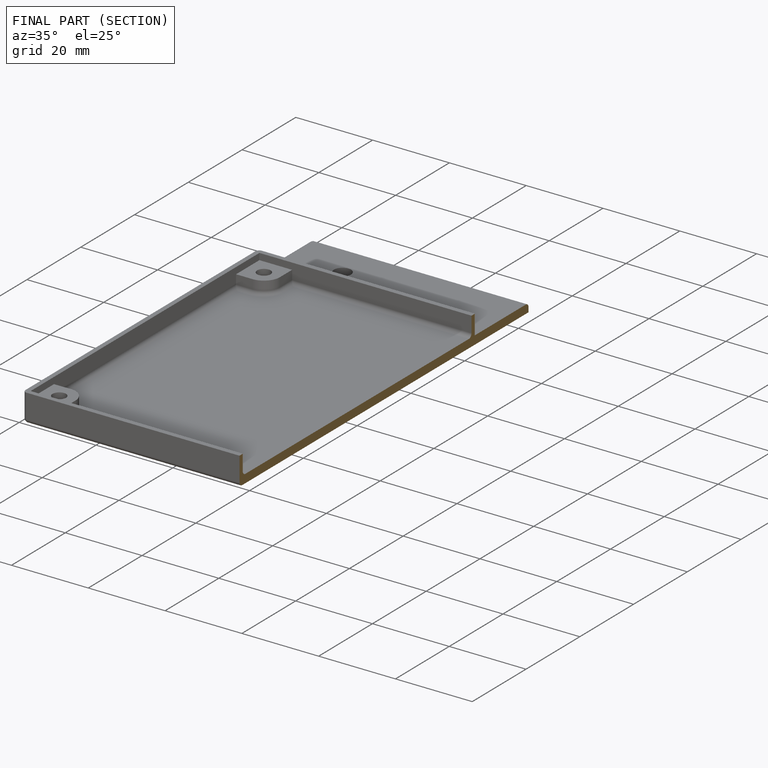
[diagram: finished part — half-section view (interior)]
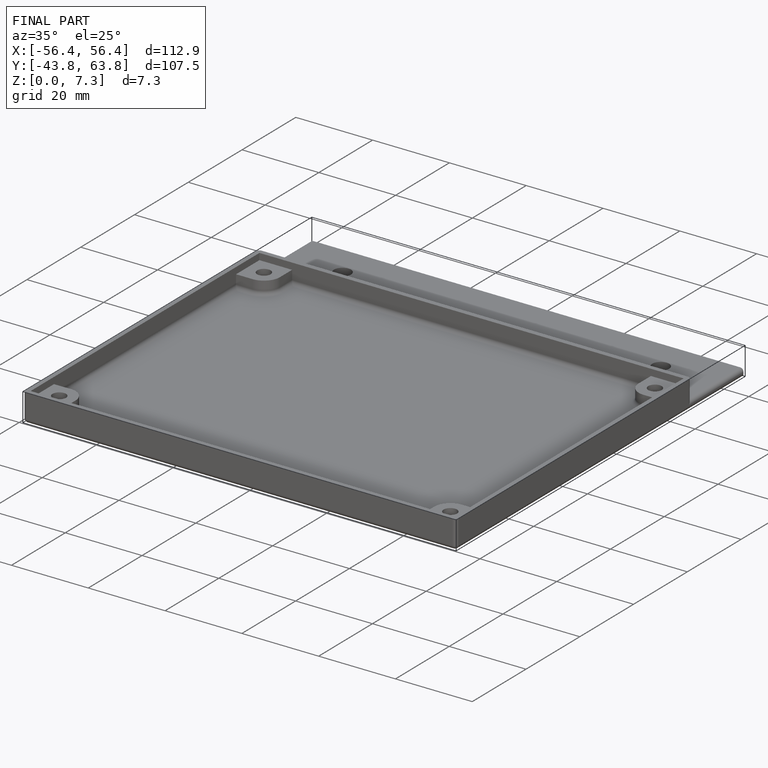
[diagram: finished part — iso view with bounding-box wireframe]
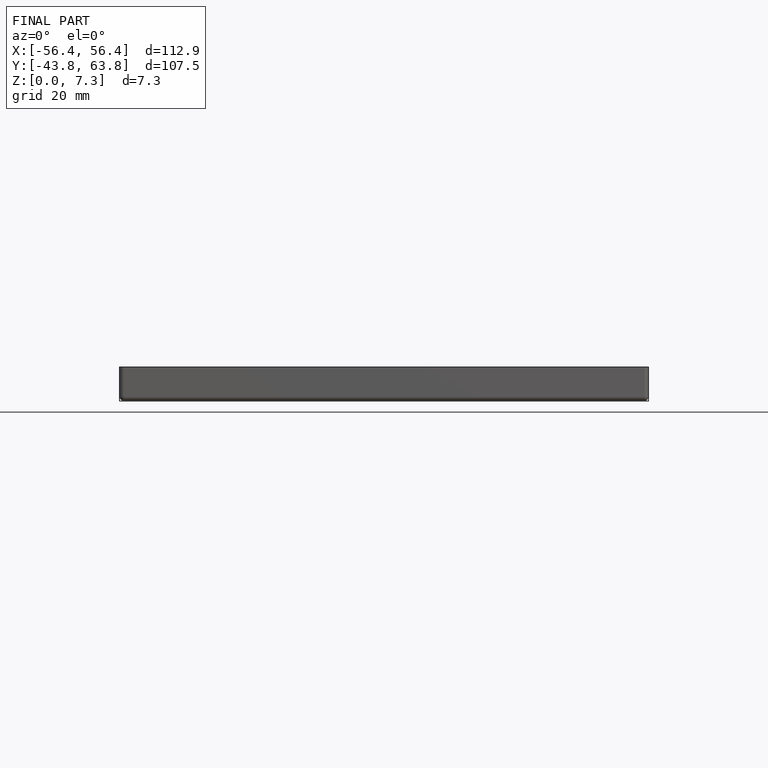
[diagram: finished part — front view with bounding-box wireframe]
